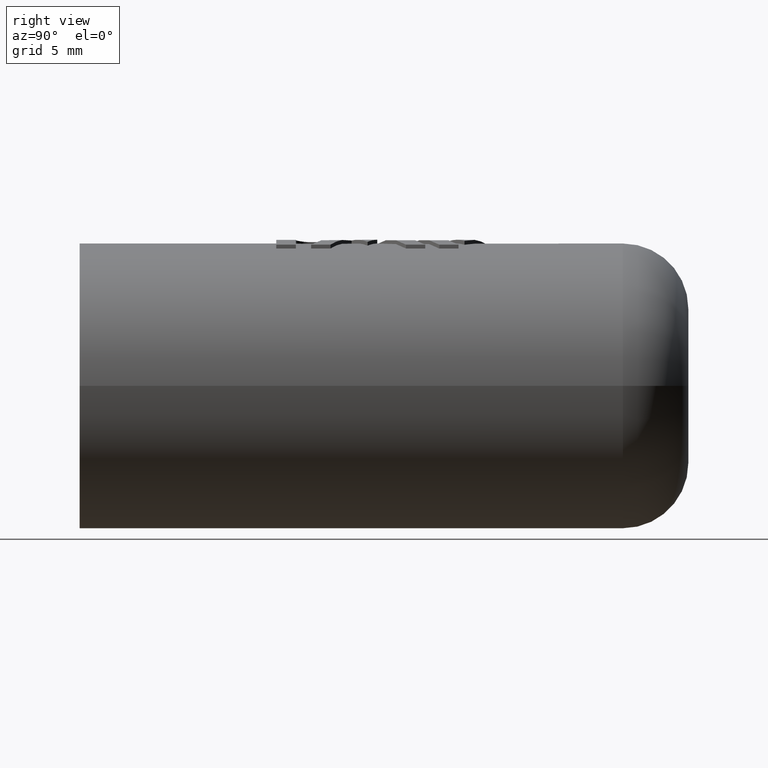
[diagram: clean part render]
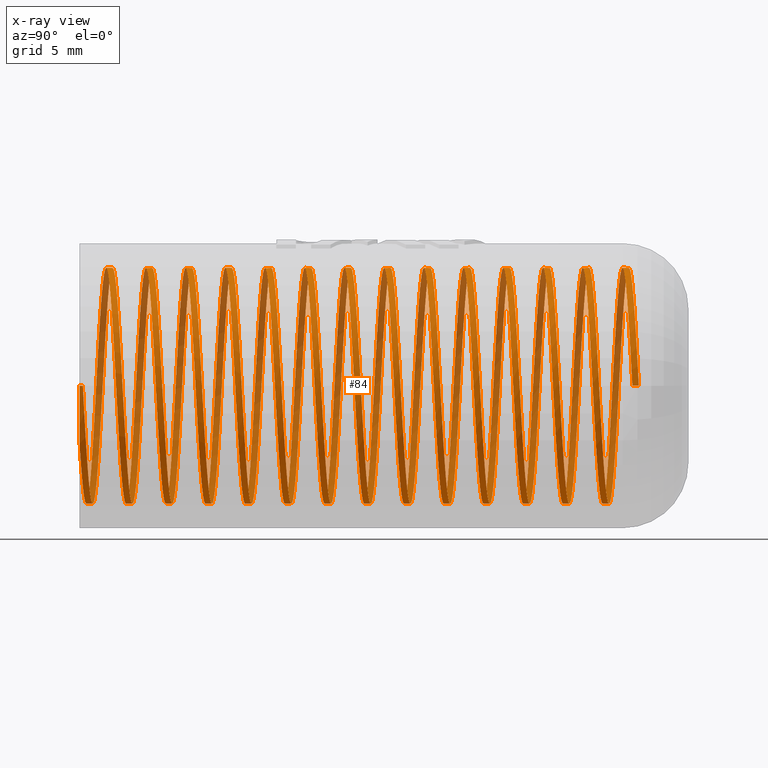
[diagram: x-ray — body ghosted, one internal face saturated and labeled with its STEP entity id]
A machine part, right view, then the same camera in x-ray: the body is ghosted and one INTERNAL B-rep face — a face not visible from any outside direction — is saturated and labeled: STEP entity #84.
In plain terms, the highlighted face is a freeform B-spline surface patch.
Its self-contained STEP definition (entity closure, byte-faithful):
#84=ADVANCED_FACE('',(#169),#170,.F.);
#169=FACE_OUTER_BOUND('',#341,.T.);
#170=B_SPLINE_SURFACE_WITH_KNOTS('',1,3,((#342,#343,#344,#345,#346,#347,#348,#349,#350,#351,#352,#353,#354,#355,#356,#357,#358,#359,#360,#361,#362,#363,#364,#365,#366,#367,#368,#369,#370,#371,#372,#373,#374,#375,#376,#377,#378,#379,#380,#381,#382,#383,#384,#385,#386,#387,#388,#389,#390,#391,#392,#393,#394,#395,#396,#397,#398,#399,#400,#401,#402,#403,#404,#405,#406,#407,#408,#409,#410,#411,#412,#413,#414,#415,#416,#417,#418,#419,#420,#421,#422,#423,#424,#425,#426,#427,#428,#429,#430,#431,#432,#433,#434,#435,#436,#437,#438,#439,#440,#441,#442,#443,#444,#445,#446,#447,#448,#449,#450,#451,#452,#453,#454,#455,#456,#457,#458,#459,#460,#461,#462,#463,#464,#465,#466,#467,#468,#469,#470,#471,#472,#473,#474,#475,#476,#477,#478,#479,#480,#481,#482,#483,#484,#485,#486,#487,#488,#489,#490,#491,#492,#493,#494,#495,#496,#497,#498,#499,#500,#501,#502,#503,#504,#505,#506,#507,#508,#509,#510,#511,#512,#513,#514,#515,#516,#517,#518,#519,#520,#521,#522,#523,#524,#525,#526,#527,#528,#529,#530,#531,#532,#533,#534,#535,#536,#537,#538,#539,#540,#541,#542,#543,#544,#545,#546,#547,#548,#549,#550,#551,#552,#553,#554,#555,#556,#557,#558,#559,#560,#561,#562,#563,#564,#565,#566,#567),(#568,#569,#570,#571,#572,#573,#574,#575,#576,#577,#578,#579,#580,#581,#582,#583,#584,#585,#586,#587,#588,#589,#590,#591,#592,#593,#594,#595,#596,#597,#598,#599,#600,#601,#602,#603,#604,#605,#606,#607,#608,#609,#610,#611,#612,#613,#614,#615,#616,#617,#618,#619,#620,#621,#622,#623,#624,#625,#626,#627,#628,#629,#630,#631,#632,#633,#634,#635,#636,#637,#638,#639,#640,#641,#642,#643,#644,#645,#646,#647,#648,#649,#650,#651,#652,#653,#654,#655,#656,#657,#658,#659,#660,#661,#662,#663,#664,#665,#666,#667,#668,#669,#670,#671,#672,#673,#674,#675,#676,#677,#678,#679,#680,#681,#682,#683,#684,#685,#686,#687,#688,#689,#690,#691,#692,#693,#694,#695,#696,#697,#698,#699,#700,#701,#702,#703,#704,#705,#706,#707,#708,#709,#710,#711,#712,#713,#714,#715,#716,#717,#718,#719,#720,#721,#722,#723,#724,#725,#726,#727,#728,#729,#730,#731,#732,#733,#734,#735,#736,#737,#738,#739,#740,#741,#742,#743,#744,#745,#746,#747,#748,#749,#750,#751,#752,#753,#754,#755,#756,#757,#758,#759,#760,#761,#762,#763,#764,#765,#766,#767,#768,#769,#770,#771,#772,#773,#774,#775,#776,#777,#778,#779,#780,#781,#782,#783,#784,#785,#786,#787,#788,#789,#790,#791,#792,#793)),.UNSPECIFIED.,.F.,.F.,.F.,(2,2),(4,1,1,1,1,1,1,1,1,1,1,1,1,1,1,1,1,1,1,1,1,1,1,1,1,1,1,1,1,1,1,1,1,1,1,1,1,1,1,1,1,1,1,1,1,1,1,1,1,1,1,1,1,1,1,1,1,1,1,1,1,1,1,1,1,1,1,1,1,1,1,1,1,1,1,1,1,1,1,1,1,1,1,1,1,1,1,1,1,1,1,1,1,1,1,1,1,1,1,1,1,1,1,1,1,1,1,1,1,1,1,1,1,1,1,1,1,1,1,1,1,1,1,1,1,1,1,1,1,1,1,1,1,1,1,1,1,1,1,1,1,1,1,1,1,1,1,1,1,1,1,1,1,1,1,1,1,1,1,1,1,1,1,1,1,1,1,1,1,1,1,1,1,1,1,1,1,1,1,1,1,1,1,1,1,1,1,1,1,1,1,1,1,1,1,1,1,1,1,1,1,1,1,1,1,1,1,1,1,1,1,1,1,1,1,1,1,1,1,1,1,1,1,4),(0.666666666666667,1.0),(0.0,1.0,2.0,3.0,4.0,5.0,6.0,7.0,8.0,9.0,10.0,11.0,12.0,13.0,14.0,15.0,16.0,17.0,18.0,19.0,20.0,21.0,22.0,23.0,24.0,25.0,26.0,27.0,28.0,29.0,30.0,31.0,32.0,33.0,34.0,35.0,36.0,37.0,38.0,39.0,40.0,41.0,42.0,43.0,44.0,45.0,46.0,47.0,48.0,49.0,50.0,51.0,52.0,53.0,54.0,55.0,56.0,57.0,58.0,59.0,60.0,61.0,62.0,63.0,64.0,65.0,66.0,67.0,68.0,69.0,70.0,71.0,72.0,73.0,74.0,75.0,76.0,77.0,78.0,79.0,80.0,81.0,82.0,83.0,84.0,85.0,86.0,87.0,88.0,89.0,90.0,91.0,92.0,93.0,94.0,95.0,96.0,97.0,98.0,99.0,100.0,101.0,102.0,103.0,104.0,105.0,106.0,107.0,108.0,109.0,110.0,111.0,112.0,113.0,114.0,115.0,116.0,117.0,118.0,119.0,120.0,121.0,122.0,123.0,124.0,125.0,126.0,127.0,128.0,129.0,130.0,131.0,132.0,133.0,134.0,135.0,136.0,137.0,138.0,139.0,140.0,141.0,142.0,143.0,144.0,145.0,146.0,147.0,148.0,149.0,150.0,151.0,152.0,153.0,154.0,155.0,156.0,157.0,158.0,159.0,160.0,161.0,162.0,163.0,164.0,165.0,166.0,167.0,168.0,169.0,170.0,171.0,172.0,173.0,174.0,175.0,176.0,177.0,178.0,179.0,180.0,181.0,182.0,183.0,184.0,185.0,186.0,187.0,188.0,189.0,190.0,191.0,192.0,193.0,194.0,195.0,196.0,197.0,198.0,199.0,200.0,201.0,202.0,203.0,204.0,205.0,206.0,207.0,208.0,209.0,210.0,211.0,212.0,213.0,214.0,215.0,216.0,217.0,218.0,219.0,220.0,221.0,222.0,223.0),.UNSPECIFIED.);
#341=EDGE_LOOP('',(#1871,#1872,#1873,#1874,#1875));
#342=CARTESIAN_POINT('',(6.3,-0.173205080756877,2.37169225231204E-16));
#343=CARTESIAN_POINT('',(6.3,-0.129126603612519,-0.823022893598832));
#344=CARTESIAN_POINT('',(5.96898186251176,-0.0399780629286492,-2.48718995157596));
#345=CARTESIAN_POINT('',(4.55567584672787,0.0929476636853997,-4.58722580907621));
#346=CARTESIAN_POINT('',(2.44264845018766,0.226086968488903,-5.98651422428082));
#347=CARTESIAN_POINT('',(-0.0455424675974471,0.359169045150963,-6.46530056963526));
#348=CARTESIAN_POINT('',(-2.52674266770472,0.492266456067964,-5.95134570011338));
#349=CARTESIAN_POINT('',(-4.61985437142486,0.625359758176598,-4.52324078570713));
#350=CARTESIAN_POINT('',(-6.00339608396789,0.758454161239735,-2.40042355992744));
#351=CARTESIAN_POINT('',(-6.46486632962302,0.891548269302202,0.0910836817715416));
#352=CARTESIAN_POINT('',(-5.93338751159571,1.02464245641009,2.56859989074542));
#353=CARTESIAN_POINT('',(-4.49059021094314,1.15773662233776,4.65160109311483));
#354=CARTESIAN_POINT('',(-2.35807599304559,1.29083079394067,6.020155362778));
#355=CARTESIAN_POINT('',(0.136618882957455,1.4239249640229,6.46406438135695));
#356=CARTESIAN_POINT('',(2.61033024645219,1.55701913451259,5.9151474226655));
#357=CARTESIAN_POINT('',(4.68311681900732,1.69011330489311,4.45771352727371));
#358=CARTESIAN_POINT('',(6.0366160009276,1.82320747530288,2.31561229229533));
#359=CARTESIAN_POINT('',(6.46294169147925,1.95630164570481,-0.182147532297949));
#360=CARTESIAN_POINT('',(5.89661384705699,2.08939581610885,-2.65193102657085));
#361=CARTESIAN_POINT('',(4.4246156656465,2.22248998651231,-4.71440019963269));
#362=CARTESIAN_POINT('',(2.27303369854357,2.35558415691593,-6.05277711767679));
#363=CARTESIAN_POINT('',(-0.227667144093833,2.48867832731951,-6.46149833262261));
#364=CARTESIAN_POINT('',(-2.69340022651144,2.6217724977231,-5.87778770038637));
#365=CARTESIAN_POINT('',(-4.74544966708667,2.75486666812668,-4.39129826909219));
#366=CARTESIAN_POINT('',(-6.068637915353,2.88796083853028,-2.23034232424643));
#367=CARTESIAN_POINT('',(-6.45973437527874,3.02105500893386,0.273175459782226));
#368=CARTESIAN_POINT('',(-5.85866991704752,3.15414917933745,2.73473578871295));
#369=CARTESIAN_POINT('',(-4.35776299063034,3.28724334974104,4.77626368079459));
#370=CARTESIAN_POINT('',(-2.18754028763258,3.42033752014463,6.08419760699547));
#371=CARTESIAN_POINT('',(0.318670221394663,3.55343169054821,6.45764990696935));
#372=CARTESIAN_POINT('',(2.77593566223795,3.6865258609518,5.83926144560257));
#373=CARTESIAN_POINT('',(4.80684071186594,3.81962003135538,4.32401149417219));
#374=CARTESIAN_POINT('',(6.09945542058292,3.95271420175897,2.14462971239947));
#375=CARTESIAN_POINT('',(6.45524503111901,4.08580837216256,-0.364149171629338));
#376=CARTESIAN_POINT('',(5.81956324903661,4.21890254256614,-2.81699780288298));
#377=CARTESIAN_POINT('',(4.29004545435693,4.35199671296973,-4.83717924316812));
#378=CARTESIAN_POINT('',(2.10161272763005,4.48509088337332,-6.11441059907236));
#379=CARTESIAN_POINT('',(-0.409610053969005,4.61818505377691,-6.45251986704982));
#380=CARTESIAN_POINT('',(-2.85792017327849,4.7512792241805,-5.79957630470993));
#381=CARTESIAN_POINT('',(-4.86727776940207,4.88437339458408,-4.25586655646879));
#382=CARTESIAN_POINT('',(-6.12906240043658,5.01746756498767,-2.05849146768685));
#383=CARTESIAN_POINT('',(-6.44947454997552,5.15056173539126,0.455050612792812));
#384=CARTESIAN_POINT('',(-5.77930160430957,5.28365590579484,2.89870074298983));
#385=CARTESIAN_POINT('',(-4.22147649635327,5.41675007619843,4.89713479717701));
#386=CARTESIAN_POINT('',(-2.01526807210629,5.54984424660202,6.14341009770095));
#387=CARTESIAN_POINT('',(0.500468593488392,5.68293841700561,6.44610923099483));
#388=CARTESIAN_POINT('',(2.93933748861802,5.81603258740919,5.75874015380011));
#389=CARTESIAN_POINT('',(4.92674884508459,5.94912675781278,4.18687698033304));
#390=CARTESIAN_POINT('',(6.1574529789795,6.08222092821637,1.97194468549233));
#391=CARTESIAN_POINT('',(6.44242407708392,6.21531509861996,-0.54586174256354));
#392=CARTESIAN_POINT('',(5.73789297337367,6.34840926902354,-2.97982839390024));
#393=CARTESIAN_POINT('',(4.15206972512336,6.48150343942713,-4.95611844377221));
#394=CARTESIAN_POINT('',(1.92852345741026,6.61459760983072,-6.17119034751023));
#395=CARTESIAN_POINT('',(-0.59122780775813,6.7476917802343,-6.43841927108809));
#396=CARTESIAN_POINT('',(-3.02017144980968,6.88078595063789,-5.71676109739943));
#397=CARTESIAN_POINT('',(-4.98524213601616,7.01388012104148,-4.11705645774673));
#398=CARTESIAN_POINT('',(-6.18462152168967,7.14697429144507,-1.88500654227989));
#399=CARTESIAN_POINT('',(-6.43409501171279,7.28006846184865,0.636564538155888));
#400=CARTESIAN_POINT('',(-5.69534557437218,7.41316263225224,3.06036465465544));
#401=CARTESIAN_POINT('',(-4.08183891544743,7.54625680265583,5.01411847679369));
#402=CARTESIAN_POINT('',(-1.84139609926865,7.67935097305941,6.19774583510676));
#403=CARTESIAN_POINT('',(0.681869684296048,7.81244514346301,6.42945151351365));
#404=CARTESIAN_POINT('',(3.10040601418167,7.94553931386659,5.67364746686037));
#405=CARTESIAN_POINT('',(5.04274603335494,8.07863348427017,4.04641884560509));
#406=CARTESIAN_POINT('',(6.21056263657583,8.21172765467376,1.79769429218466));
#407=CARTESIAN_POINT('',(6.42448900688594,8.34482182507735,-0.727140998284853));
#408=CARTESIAN_POINT('',(5.65166785145337,8.47791599548094,-3.14029354166669));
#409=CARTESIAN_POINT('',(4.01079800564813,8.61101016588452,-5.07112338529383));
#410=CARTESIAN_POINT('',(1.75390328936911,8.7441043362881,-6.22307129016897));
#411=CARTESIAN_POINT('',(-0.772376233907304,8.8771985066917,-6.41920773805306));
#412=CARTESIAN_POINT('',(-3.18002525802128,9.01029267709528,-5.62940781870808));
#413=CARTESIAN_POINT('',(-5.09924912461869,9.14338684749887,-3.9749781629665));
#414=CARTESIAN_POINT('',(-6.23527117524755,9.27648101790246,-1.71002526358883));
#415=CARTESIAN_POINT('',(-6.41360796905433,9.40957518830605,0.817573146738424));
#416=CARTESIAN_POINT('',(-5.60686847309477,9.54266935870963,3.21959919188724));
#417=CARTESIAN_POINT('',(-3.9389610948241,9.67576352911322,5.12712185582195));
#418=CARTESIAN_POINT('',(-1.66606239192848,9.80885769951681,6.24716168649304));
#419=CARTESIAN_POINT('',(0.862729494254772,9.94195186992039,6.40768997773206));
#420=CARTESIAN_POINT('',(3.25901337973493,10.075046040324,5.58405093294229));
#421=CARTESIAN_POINT('',(5.15474019594957,10.2081402107276,3.90274858827043));
#422=CARTESIAN_POINT('',(6.25874223393703,10.3412343811312,1.62201685568244));
#423=CARTESIAN_POINT('',(6.4014540577177,10.4743285515347,-0.907843035945463));
#424=CARTESIAN_POINT('',(5.56095633038261,10.6074227219383,-3.29826586596087));
#425=CARTESIAN_POINT('',(3.86634244005202,10.7405168923419,-5.18210277466953));
#426=CARTESIAN_POINT('',(1.57789084024668,10.8736110627455,-6.2700122429905));
#427=CARTESIAN_POINT('',(-0.952911533423685,11.0067052331491,-6.39490051841725));
#428=CARTESIAN_POINT('',(-3.33735470298454,11.1397994035527,-5.53758581129466));
#429=CARTESIAN_POINT('',(-5.20920823433979,11.2728935739563,-3.82974445652339));
#430=CARTESIAN_POINT('',(-6.28097115447234,11.4059877443598,-1.53368653501017));
#431=CARTESIAN_POINT('',(-6.38802968499599,11.5390819147634,0.997932750537349));
#432=CARTESIAN_POINT('',(-5.5139405352474,11.672176085167,3.37627795134534));
#433=CARTESIAN_POINT('',(-3.79295645355703,11.8052702555706,5.23605523007589));
#434=CARTESIAN_POINT('',(-1.48940613324659,11.9383644259742,6.29161842463706));
#435=CARTESIAN_POINT('',(1.04290445348064,12.0714585963778,6.38084189836226));
#436=CARTESIAN_POINT('',(3.4150336797985,12.2045527667814,5.49002167544236));
#437=CARTESIAN_POINT('',(5.26264242981742,12.337646937185,3.75598025645376));
#438=CARTESIAN_POINT('',(6.30195352520185,12.4707411075886,1.445051832005));
#439=CARTESIAN_POINT('',(6.37333751515061,12.6038352779921,-1.08782441090412));
#440=CARTESIAN_POINT('',(5.46583041865539,12.7369294483957,-3.45361996541116));
#441=CARTESIAN_POINT('',(3.71881769985205,12.8700236187993,-5.28896851439411));
#442=CARTESIAN_POINT('',(1.40062583200136,13.0031177892029,-6.31197594337269));
#443=CARTESIAN_POINT('',(-1.13269039402588,13.1362119596065,-6.36551690770409));
#444=CARTESIAN_POINT('',(-3.49203489365751,13.2693061300101,-5.44136796517783));
#445=CARTESIAN_POINT('',(-5.31503217759145,13.4024003004137,-3.68147062763681));
#446=CARTESIAN_POINT('',(-6.32168518186985,13.5354944708173,-1.35613033750901));
#447=CARTESIAN_POINT('',(-6.35738046405573,13.6685886412209,1.17750017674207));
#448=CARTESIAN_POINT('',(-5.41663552875692,13.8016828116244,3.53027655851398));
#449=CARTESIAN_POINT('',(-3.64394089284809,13.934776982028,5.3408321262154));
#450=CARTESIAN_POINT('',(-1.31156755624938,14.0678711524316,6.33108075895254));
#451=CARTESIAN_POINT('',(1.22225153573726,14.2009653228352,6.34892858790938));
#452=CARTESIAN_POINT('',(3.56834306255391,14.3340594932388,5.39163433653548));
#453=CARTESIAN_POINT('',(5.36636708015665,14.4671536636424,3.60623035758894));
#454=CARTESIAN_POINT('',(6.34016220844289,14.600247834046,1.26693969928236));
#455=CARTESIAN_POINT('',(6.34016169861956,14.7333420044496,-1.26694225059498));
#456=CARTESIAN_POINT('',(5.36636562899123,14.8664361748531,-3.60623251704138));
#457=CARTESIAN_POINT('',(3.56834089293322,14.9995303452567,-5.391635772454));
#458=CARTESIAN_POINT('',(1.2222489808968,15.1326245156603,-6.34892907974895));
#459=CARTESIAN_POINT('',(-1.31157010390757,15.2657186860639,-6.33108023117074));
#460=CARTESIAN_POINT('',(-3.64394304202514,15.3988128564675,-5.34083065987508));
#461=CARTESIAN_POINT('',(-5.41663694935727,15.5319070268711,-3.53027437883271));
#462=CARTESIAN_POINT('',(-6.35738093788714,15.6650011972747,-1.17749761850049));
#463=CARTESIAN_POINT('',(-6.32168463615575,15.7980953676783,1.35613288138641));
#464=CARTESIAN_POINT('',(-5.31503069614895,15.9311895380819,3.68147276643186));
#465=CARTESIAN_POINT('',(-3.49203270402373,16.0642837084854,5.44136937038957));
#466=CARTESIAN_POINT('',(-1.13268783251016,16.197377878889,6.36551736350381));
#467=CARTESIAN_POINT('',(1.40062837197172,16.3304720492926,6.31197537975338));
#468=CARTESIAN_POINT('',(3.71881982815895,16.4635662196962,5.28896701792296));
#469=CARTESIAN_POINT('',(5.46583180840878,16.5966603900998,3.45361776593356));
#470=CARTESIAN_POINT('',(6.37333795289604,16.7297545605034,1.08782184624136));
#471=CARTESIAN_POINT('',(6.30195294370531,16.862848730907,-1.44505436794229));
#472=CARTESIAN_POINT('',(5.26264091839188,16.9959429013105,-3.75598237416692));
#473=CARTESIAN_POINT('',(3.41503147058624,17.1290370717141,-5.49002304966844));
#474=CARTESIAN_POINT('',(1.04290188579808,17.2621312421177,-6.38084231803168));
#475=CARTESIAN_POINT('',(-1.48940866502497,17.3952254125214,-6.29161782529213));
#476=CARTESIAN_POINT('',(-3.79295856057136,17.5283195829249,-5.23605370377095));
#477=CARTESIAN_POINT('',(-5.51394189387797,17.6614137533285,-3.37627573250801));
#478=CARTESIAN_POINT('',(-6.38803008656858,17.7945079237321,-0.997930179962414));
#479=CARTESIAN_POINT('',(-6.28097053730873,17.9276020941357,1.53368906250409));
#480=CARTESIAN_POINT('',(-5.20920669323116,18.0606962645393,3.82974655273436));
#481=CARTESIAN_POINT('',(-3.33735247463216,18.1937904349429,5.53758715426237));
#482=CARTESIAN_POINT('',(-0.952908960083721,18.3268846053464,6.39490090187309));
#483=CARTESIAN_POINT('',(1.57789336333074,18.45997877575,6.27001160803884));
#484=CARTESIAN_POINT('',(3.86634452535576,18.5930729461537,5.18210121883359));
#485=CARTESIAN_POINT('',(5.56095765762084,18.7261671165573,3.29826362820397));
#486=CARTESIAN_POINT('',(6.40145442303776,18.8592612869608,0.907840459968245));
#487=CARTESIAN_POINT('',(6.25874158122883,18.9923554573644,-1.62201937423152));
#488=CARTESIAN_POINT('',(5.15473862546356,19.125449627768,-3.9027506625634));
#489=CARTESIAN_POINT('',(3.25901113268459,19.2585437981716,-5.58405224438517));
#490=CARTESIAN_POINT('',(0.862726915768075,19.3916379685752,-6.40769032489823));
#491=CARTESIAN_POINT('',(-1.66606490581759,19.5247321389787,-6.24716101606067));
#492=CARTESIAN_POINT('',(-3.93896315800339,19.6578263093824,-5.1271202707638));
#493=CARTESIAN_POINT('',(-5.60686976867723,19.7909204797859,-3.2195969356549));
#494=CARTESIAN_POINT('',(-6.41360829804937,19.9240146501895,-0.817570565870233));
#495=CARTESIAN_POINT('',(-6.23527048712426,20.0571088205931,1.71002777269325));
#496=CARTESIAN_POINT('',(-5.09924752506701,20.1902029909967,3.97498021492976));
#497=CARTESIAN_POINT('',(-3.1800229927189,20.3232971614003,5.62940909836585));
#498=CARTESIAN_POINT('',(-0.772373650785613,20.4563913318039,6.41920804886063));
#499=CARTESIAN_POINT('',(1.75390579356432,20.5894855022074,6.22307058438891));
#500=CARTESIAN_POINT('',(4.01080004629352,20.7225796726111,5.07112177132802));
#501=CARTESIAN_POINT('',(5.65166911512295,20.8556738430146,3.14029126740665));
#502=CARTESIAN_POINT('',(6.42448929949065,20.9887680134182,0.727138413037839));
#503=CARTESIAN_POINT('',(6.21056191317403,21.1218621838218,-1.79769679134643));
#504=CARTESIAN_POINT('',(5.04274440505505,21.2549563542254,-4.04642087483138));
#505=CARTESIAN_POINT('',(3.10040373107687,21.388050524629,-5.67364871447905));
#506=CARTESIAN_POINT('',(0.681867097051982,21.5211446950326,-6.42945178790097));
#507=CARTESIAN_POINT('',(-1.84139859327298,21.6542388654361,-6.1977450941191));
#508=CARTESIAN_POINT('',(-4.08184093315394,21.7873330358398,-5.01411683424052));
#509=CARTESIAN_POINT('',(-5.69534680587806,21.9204272062433,-3.06036236281909));
#510=CARTESIAN_POINT('',(-6.43409526786909,22.0535213766469,-0.636561949043178));
#511=CARTESIAN_POINT('',(-6.18462076315292,22.1866155470505,1.885009031003));
#512=CARTESIAN_POINT('',(-4.98524047929118,22.3197097174541,4.11705846383333));
#513=CARTESIAN_POINT('',(-3.02016914935552,22.4528038878577,5.71676231273141));
#514=CARTESIAN_POINT('',(-0.591225216905202,22.5858980582613,6.43841950900067));
#515=CARTESIAN_POINT('',(1.92852594072873,22.7189922286649,6.17118957146201));
#516=CARTESIAN_POINT('',(4.15207171949049,22.8520863990685,4.95611677295766));
#517=CARTESIAN_POINT('',(5.73789417247146,22.985180569472,2.9798260849424));
#518=CARTESIAN_POINT('',(6.44242429674096,23.1182747398757,0.545859150098943));
#519=CARTESIAN_POINT('',(6.15745218545834,23.2513689102793,-1.97194716328291));
#520=CARTESIAN_POINT('',(4.92674716026333,23.3844630806828,-4.18687896288181));
#521=CARTESIAN_POINT('',(2.9393351712712,23.5175572510864,-5.75874133660413));
#522=CARTESIAN_POINT('',(0.50046599954087,23.65065142149,-6.44610943238546));
#523=CARTESIAN_POINT('',(-2.01527054424594,23.7837455918936,-6.14340928674622));
#524=CARTESIAN_POINT('',(-4.22147846698516,23.9168397622972,-4.89713309843277));
#525=CARTESIAN_POINT('',(-5.77930277076123,24.0499339327007,-2.89869841736885));
#526=CARTESIAN_POINT('',(-6.44947473308971,24.1830281031044,-0.45504801749099));
#527=CARTESIAN_POINT('',(-6.1290615720885,24.316122273508,2.05849393405301));
#528=CARTESIAN_POINT('',(-4.867276056819,24.4492164439115,4.25586851508614));
#529=CARTESIAN_POINT('',(-2.85791783949878,24.5823106143152,5.79957745475131));
#530=CARTESIAN_POINT('',(-0.409607457441606,24.7154047847187,6.45252003187849));
#531=CARTESIAN_POINT('',(2.10161518810034,24.8484989551223,6.11440975337203));
#532=CARTESIAN_POINT('',(4.29004740086257,24.9815931255259,4.83717751683121));
#533=CARTESIAN_POINT('',(5.81956438261066,25.1146872959294,2.81699546106033));
#534=CARTESIAN_POINT('',(6.45524517765401,25.247781466333,0.364146574005216));
#535=CARTESIAN_POINT('',(6.0994545575723,25.3808756367367,-2.14463216685184));
#536=CARTESIAN_POINT('',(4.80683897186086,25.5139698071403,-4.32401342846953));
#537=CARTESIAN_POINT('',(2.77593331248854,25.6470639775438,-5.83926256265305));
#538=CARTESIAN_POINT('',(0.318667622802698,25.7801581479474,-6.45765003520339));
#539=CARTESIAN_POINT('',(-2.1875427359452,25.913252318351,-6.08419672671738));
#540=CARTESIAN_POINT('',(-4.35776491262342,26.0463464887546,-4.77626192720766));
#541=CARTESIAN_POINT('',(-5.858671017519,26.1794406591582,-2.73473343115339));
#542=CARTESIAN_POINT('',(-6.45973448520545,26.3125348295617,-0.273172860351371));
#543=CARTESIAN_POINT('',(-6.0686370178511,26.4456289999654,2.23034476629788));
#544=CARTESIAN_POINT('',(-4.7454479000049,26.5787231703689,4.39130017868559));
#545=CARTESIAN_POINT('',(-2.6933978612587,26.7118173407725,5.87778878422423));
#546=CARTESIAN_POINT('',(-0.227664543953055,26.8449115111761,6.46149842423653));
#547=CARTESIAN_POINT('',(2.27303613421261,26.9780056815797,6.05277620299565));
#548=CARTESIAN_POINT('',(4.4246175627455,27.1110998519833,4.71439841914368));
#549=CARTESIAN_POINT('',(5.89661491420747,27.2441940223868,2.65192865374259));
#550=CARTESIAN_POINT('',(6.46294176477585,27.3772881927909,0.182144931575128));
#551=CARTESIAN_POINT('',(6.03661506911256,27.5103823631928,-2.31561472145687));
#552=CARTESIAN_POINT('',(4.68311502519952,27.6434765336025,-4.45771541180022));
#553=CARTESIAN_POINT('',(2.61032786616724,27.7765707039831,-5.91514847301429));
#554=CARTESIAN_POINT('',(0.13661628176268,27.9096648744728,-6.46406443656842));
#555=CARTESIAN_POINT('',(-2.35807841540826,28.042759044555,-6.02015441299134));
#556=CARTESIAN_POINT('',(-4.49059208393042,28.1758532161579,-4.65159928919626));
#557=CARTESIAN_POINT('',(-5.9333885391057,28.3089473820857,-2.56859749312121));
#558=CARTESIAN_POINT('',(-6.46486639339319,28.4420415691931,-0.0910811082625715));
#559=CARTESIAN_POINT('',(-6.00339501512885,28.575135677257,2.40042604001964));
#560=CARTESIAN_POINT('',(-4.61985288536829,28.7082300803161,4.52324254147038));
#561=CARTESIAN_POINT('',(-2.52673935445692,28.8413233824352,5.95134674386777));
#562=CARTESIAN_POINT('',(-0.0455419463153376,28.9744207933281,6.4653011177451));
#563=CARTESIAN_POINT('',(2.44265454473268,29.1075028700419,5.9865110694179));
#564=CARTESIAN_POINT('',(4.5556730687649,29.2406421747681,4.58722885111016));
#565=CARTESIAN_POINT('',(5.96898634383966,29.3735679015022,2.48718147017731));
#566=CARTESIAN_POINT('',(6.3,29.4627164420989,0.823019947648541));
#567=CARTESIAN_POINT('',(6.3,29.5067949192433,-2.22208269257968E-12));
#568=CARTESIAN_POINT('',(6.3,0.173205080756877,-2.37169225231204E-16));
#569=CARTESIAN_POINT('',(6.3,0.217283557901234,-0.823019947650754));
#570=CARTESIAN_POINT('',(5.96898634383866,0.306432098497954,-2.4871814701794));
#571=CARTESIAN_POINT('',(4.55567306876335,0.439357825232003,-4.58722885111174));
#572=CARTESIAN_POINT('',(2.44265454473063,0.572497129958273,-5.98651106941873));
#573=CARTESIAN_POINT('',(-0.0455419463175261,0.705579206672065,-6.46530111774509));
#574=CARTESIAN_POINT('',(-2.52673935445892,0.83867661756493,-5.95134674386693));
#575=CARTESIAN_POINT('',(-4.61985288536978,0.971769919684035,-4.52324254146885));
#576=CARTESIAN_POINT('',(-6.00339501512963,1.10486432274313,-2.40042604001768));
#577=CARTESIAN_POINT('',(-6.46486639339316,1.23795843080705,0.0910811082646721));
#578=CARTESIAN_POINT('',(-5.93338853910486,1.37105261791445,2.56859749312311));
#579=CARTESIAN_POINT('',(-4.49059208392894,1.50414678384228,4.65159928919769));
#580=CARTESIAN_POINT('',(-2.35807841540635,1.63724095544514,6.02015441299207));
#581=CARTESIAN_POINT('',(0.136616281764691,1.77033512552738,6.46406443656836));
#582=CARTESIAN_POINT('',(2.61032786616907,1.90342929601708,5.91514847301348));
#583=CARTESIAN_POINT('',(4.68311502520088,2.03652346639759,4.45771541179878));
#584=CARTESIAN_POINT('',(6.03661506911326,2.16961763680735,2.31561472145505));
#585=CARTESIAN_POINT('',(6.46294176477579,2.30271180720929,-0.182144931577072));
#586=CARTESIAN_POINT('',(5.89661491420669,2.43580597761332,-2.65192865374433));
#587=CARTESIAN_POINT('',(4.42461756274411,2.56890014801679,-4.71439841914498));
#588=CARTESIAN_POINT('',(2.27303613421086,2.70199431842041,-6.05277620299631));
#589=CARTESIAN_POINT('',(-0.227664543954905,2.83508848882399,-6.46149842423647));
#590=CARTESIAN_POINT('',(-2.69339786126036,2.96818265922758,-5.87778878422348));
#591=CARTESIAN_POINT('',(-4.74544790000613,3.10127682963116,-4.39130017868426));
#592=CARTESIAN_POINT('',(-6.06863701785172,3.23437100003475,-2.23034476629619));
#593=CARTESIAN_POINT('',(-6.45973448520537,3.36746517043833,0.273172860353118));
#594=CARTESIAN_POINT('',(-5.85867101751826,3.50055934084192,2.73473343115496));
#595=CARTESIAN_POINT('',(-4.35776491262214,3.63365351124551,4.7762619272088));
#596=CARTESIAN_POINT('',(-2.18754273594363,3.7667476816491,6.08419672671794));
#597=CARTESIAN_POINT('',(0.318667622804351,3.89984185205269,6.45765003520331));
#598=CARTESIAN_POINT('',(2.77593331249001,4.03293602245627,5.83926256265234));
#599=CARTESIAN_POINT('',(4.80683897186192,4.16603019285986,4.32401342846834));
#600=CARTESIAN_POINT('',(6.09945455757282,4.29912436326345,2.14463216685034));
#601=CARTESIAN_POINT('',(6.45524517765392,4.43221853366704,-0.364146574006756));
#602=CARTESIAN_POINT('',(5.81956438261,4.56531270407062,-2.81699546106169));
#603=CARTESIAN_POINT('',(4.29004740086145,4.69840687447421,-4.8371775168322));
#604=CARTESIAN_POINT('',(2.10161518809897,4.8315010448778,-6.1144097533725));
#605=CARTESIAN_POINT('',(-0.40960745744304,4.96459521528138,-6.45252003187841));
#606=CARTESIAN_POINT('',(-2.85791783950004,5.09768938568497,-5.79957745475068));
#607=CARTESIAN_POINT('',(-4.8672760568199,5.23078355608856,-4.25586851508511));
#608=CARTESIAN_POINT('',(-6.12906157208893,5.36387772649215,-2.05849393405173));
#609=CARTESIAN_POINT('',(-6.44947473308962,5.49697189689573,0.455048017492293));
#610=CARTESIAN_POINT('',(-5.77930277076063,5.63006606729932,2.89869841737003));
#611=CARTESIAN_POINT('',(-4.2214784669842,5.76316023770291,4.89713309843358));
#612=CARTESIAN_POINT('',(-2.01527054424476,5.8962544081065,6.14340928674661));
#613=CARTESIAN_POINT('',(0.50046599954209,6.02934857851008,6.44610943238535));
#614=CARTESIAN_POINT('',(2.93933517127223,6.16244274891367,5.7587413366036));
#615=CARTESIAN_POINT('',(4.92674716026417,6.29553691931726,4.18687896288082));
#616=CARTESIAN_POINT('',(6.1574521854587,6.42863108972084,1.97194716328173));
#617=CARTESIAN_POINT('',(6.44242429674086,6.56172526012443,-0.545859150100161));
#618=CARTESIAN_POINT('',(5.7378941724709,6.69481943052802,-2.97982608494347));
#619=CARTESIAN_POINT('',(4.15207171948961,6.82791360093161,-4.9561167729584));
#620=CARTESIAN_POINT('',(1.92852594072765,6.96100777133519,-6.17118957146235));
#621=CARTESIAN_POINT('',(-0.5912252169063,7.09410194173878,-6.43841950900057));
#622=CARTESIAN_POINT('',(-3.02016914935647,7.22719611214237,-5.71676231273091));
#623=CARTESIAN_POINT('',(-4.98524047929186,7.36029028254595,-4.11705846383251));
#624=CARTESIAN_POINT('',(-6.18462076315321,7.49338445294954,-1.88500903100205));
#625=CARTESIAN_POINT('',(-6.43409526786899,7.62647862335313,0.636561949044157));
#626=CARTESIAN_POINT('',(-5.6953468058776,7.75957279375672,3.06036236281994));
#627=CARTESIAN_POINT('',(-4.0818409331532,7.8926669641603,5.0141168342411));
#628=CARTESIAN_POINT('',(-1.8413985932721,8.02576113456389,6.19774509411936));
#629=CARTESIAN_POINT('',(0.681867097052878,8.15885530496749,6.42945178790087));
#630=CARTESIAN_POINT('',(3.10040373107761,8.29194947537107,5.67364871447864));
#631=CARTESIAN_POINT('',(5.04274440505556,8.42504364577465,4.04642087483073));
#632=CARTESIAN_POINT('',(6.21056191317425,8.55813781617824,1.79769679134565));
#633=CARTESIAN_POINT('',(6.42448929949056,8.69123198658183,-0.727138413038619));
#634=CARTESIAN_POINT('',(5.65166911512257,8.82432615698541,-3.14029126740732));
#635=CARTESIAN_POINT('',(4.01080004629295,8.957420327389,-5.07112177132845));
#636=CARTESIAN_POINT('',(1.75390579356366,9.09051449779258,-6.2230705843891));
#637=CARTESIAN_POINT('',(-0.772373650786275,9.22360866819617,-6.41920804886056));
#638=CARTESIAN_POINT('',(-3.18002299271946,9.35670283859976,-5.62940909836554));
#639=CARTESIAN_POINT('',(-5.09924752506739,9.48979700900335,-3.97498021492927));
#640=CARTESIAN_POINT('',(-6.23527048712442,9.62289117940694,-1.71002777269267));
#641=CARTESIAN_POINT('',(-6.41360829804929,9.75598534981053,0.817570565870767));
#642=CARTESIAN_POINT('',(-5.60686976867697,9.88907952021411,3.21959693565536));
#643=CARTESIAN_POINT('',(-3.93896315800299,10.0221736906177,5.1271202707641));
#644=CARTESIAN_POINT('',(-1.66606490581713,10.1552678610213,6.24716101606078));
#645=CARTESIAN_POINT('',(0.862726915768538,10.2883620314249,6.40769032489816));
#646=CARTESIAN_POINT('',(3.25901113268494,10.4214562018285,5.58405224438495));
#647=CARTESIAN_POINT('',(5.1547386254638,10.554550372232,3.90275066256309));
#648=CARTESIAN_POINT('',(6.25874158122891,10.6876445426356,1.62201937423115));
#649=CARTESIAN_POINT('',(6.40145442303771,10.8207387130392,-0.90784045996859));
#650=CARTESIAN_POINT('',(5.56095765762068,10.9538328834428,-3.29826362820425));
#651=CARTESIAN_POINT('',(3.86634452535551,11.0869270538464,-5.18210121883377));
#652=CARTESIAN_POINT('',(1.57789336333051,11.22002122425,-6.2700116080389));
#653=CARTESIAN_POINT('',(-0.952908960083987,11.3531153946536,-6.39490090187305));
#654=CARTESIAN_POINT('',(-3.33735247463233,11.4862095650572,-5.53758715426226));
#655=CARTESIAN_POINT('',(-5.20920669323125,11.6193037354607,-3.82974655273425));
#656=CARTESIAN_POINT('',(-6.28097053730878,11.7523979058643,-1.53368906250393));
#657=CARTESIAN_POINT('',(-6.38803008656855,11.8854920762679,0.997930179962506));
#658=CARTESIAN_POINT('',(-5.51394189387791,12.0185862466715,3.3762757325081));
#659=CARTESIAN_POINT('',(-3.79295856057126,12.1516804170751,5.23605370377101));
#660=CARTESIAN_POINT('',(-1.48940866502486,12.2847745874787,6.29161782529215));
#661=CARTESIAN_POINT('',(1.0429018857982,12.4178687578823,6.38084231803166));
#662=CARTESIAN_POINT('',(3.41503147058633,12.5509629282859,5.49002304966837));
#663=CARTESIAN_POINT('',(5.26264091839195,12.6840570986894,3.75598237416682));
#664=CARTESIAN_POINT('',(6.30195294370533,12.817151269093,1.44505436794217));
#665=CARTESIAN_POINT('',(6.37333795289602,12.9502454394966,-1.08782184624147));
#666=CARTESIAN_POINT('',(5.46583180840871,13.0833396099002,-3.45361776593366));
#667=CARTESIAN_POINT('',(3.71881982815886,13.2164337803038,-5.28896701792303));
#668=CARTESIAN_POINT('',(1.40062837197161,13.3495279507074,-6.31197537975342));
#669=CARTESIAN_POINT('',(-1.13268783251027,13.482622121111,-6.36551736350379));
#670=CARTESIAN_POINT('',(-3.49203270402383,13.6157162915146,-5.44136937038951));
#671=CARTESIAN_POINT('',(-5.31503069614901,13.7488104619182,-3.68147276643177));
#672=CARTESIAN_POINT('',(-6.32168463615578,13.8819046323217,-1.35613288138631));
#673=CARTESIAN_POINT('',(-6.35738093788711,14.0149988027253,1.17749761850061));
#674=CARTESIAN_POINT('',(-5.41663694935724,14.1480929731289,3.53027437883274));
#675=CARTESIAN_POINT('',(-3.64394304202508,14.2811871435325,5.34083065987511));
#676=CARTESIAN_POINT('',(-1.3115701039075,14.4142813139361,6.33108023117075));
#677=CARTESIAN_POINT('',(1.22224898089687,14.5473754843397,6.34892907974893));
#678=CARTESIAN_POINT('',(3.56834089293329,14.6804696547433,5.39163577245395));
#679=CARTESIAN_POINT('',(5.36636562899127,14.8135638251469,3.60623251704132));
#680=CARTESIAN_POINT('',(6.34016169861957,14.9466579955505,1.26694225059491));
#681=CARTESIAN_POINT('',(6.34016220844287,15.079752165954,-1.26693969928243));
#682=CARTESIAN_POINT('',(5.36636708015662,15.2128463363577,-3.60623035758899));
#683=CARTESIAN_POINT('',(3.56834306255386,15.3459405067612,-5.39163433653552));
#684=CARTESIAN_POINT('',(1.22225153573719,15.4790346771648,-6.3489285879094));
#685=CARTESIAN_POINT('',(-1.31156755624944,15.6121288475684,-6.33108075895253));
#686=CARTESIAN_POINT('',(-3.64394089284815,15.745223017972,-5.34083212621536));
#687=CARTESIAN_POINT('',(-5.41663552875695,15.8783171883756,-3.53027655851394));
#688=CARTESIAN_POINT('',(-6.35738046405576,16.0114113587792,-1.17750017674195));
#689=CARTESIAN_POINT('',(-6.32168518186982,16.1445055291827,1.35613033750911));
#690=CARTESIAN_POINT('',(-5.31503217759138,16.2775996995863,3.68147062763691));
#691=CARTESIAN_POINT('',(-3.49203489365742,16.4106938699899,5.44136796517788));
#692=CARTESIAN_POINT('',(-1.13269039402576,16.5437880403935,6.3655169077041));
#693=CARTESIAN_POINT('',(1.40062583200147,16.6768822107971,6.31197594337266));
#694=CARTESIAN_POINT('',(3.71881769985215,16.8099763812007,5.28896851439403));
#695=CARTESIAN_POINT('',(5.46583041865545,16.9430705516043,3.45361996541106));
#696=CARTESIAN_POINT('',(6.37333751515063,17.0761647220078,1.08782441090401));
#697=CARTESIAN_POINT('',(6.30195352520183,17.2092588924114,-1.44505183200511));
#698=CARTESIAN_POINT('',(5.26264242981735,17.3423530628151,-3.75598025645386));
#699=CARTESIAN_POINT('',(3.41503367979841,17.4754472332187,-5.49002167544243));
#700=CARTESIAN_POINT('',(1.04290445348053,17.6085414036222,-6.38084189836228));
#701=CARTESIAN_POINT('',(-1.4894061332467,17.7416355740258,-6.29161842463704));
#702=CARTESIAN_POINT('',(-3.79295645355712,17.8747297444294,-5.23605523007583));
#703=CARTESIAN_POINT('',(-5.51394053524746,18.007823914833,-3.37627795134525));
#704=CARTESIAN_POINT('',(-6.38802968499601,18.1409180852365,-0.997932750537258));
#705=CARTESIAN_POINT('',(-6.2809711544723,18.2740122556402,1.53368653501034));
#706=CARTESIAN_POINT('',(-5.20920823433971,18.4071064260437,3.82974445652349));
#707=CARTESIAN_POINT('',(-3.33735470298437,18.5402005964473,5.53758581129477));
#708=CARTESIAN_POINT('',(-0.95291153342342,18.673294766851,6.39490051841729));
#709=CARTESIAN_POINT('',(1.5778908402469,18.8063889372545,6.27001224299043));
#710=CARTESIAN_POINT('',(3.86634244005228,18.9394831076581,5.18210277466934));
#711=CARTESIAN_POINT('',(5.56095633038278,19.0725772780617,3.29826586596059));
#712=CARTESIAN_POINT('',(6.40145405771775,19.2056714484653,0.907843035945116));
#713=CARTESIAN_POINT('',(6.25874223393694,19.3387656188688,-1.62201685568279));
#714=CARTESIAN_POINT('',(5.15474019594933,19.4718597892725,-3.90274858827075));
#715=CARTESIAN_POINT('',(3.25901337973459,19.6049539596761,-5.5840509329425));
#716=CARTESIAN_POINT('',(0.862729494254309,19.7380481300797,-6.40768997773213));
#717=CARTESIAN_POINT('',(-1.66606239192895,19.8711423004832,-6.24716168649292));
#718=CARTESIAN_POINT('',(-3.9389610948245,20.0042364708868,-5.12712185582165));
#719=CARTESIAN_POINT('',(-5.60686847309504,20.1373306412904,-3.21959919188679));
#720=CARTESIAN_POINT('',(-6.4136079690544,20.270424811694,-0.817573146737891));
#721=CARTESIAN_POINT('',(-6.2352711752474,20.4035189820976,1.71002526358941));
#722=CARTESIAN_POINT('',(-5.09924912461831,20.5366131525012,3.97497816296699));
#723=CARTESIAN_POINT('',(-3.18002525802072,20.6697073229047,5.6294078187084));
#724=CARTESIAN_POINT('',(-0.772376233906643,20.8028014933084,6.41920773805313));
#725=CARTESIAN_POINT('',(1.75390328936978,20.9358956637119,6.22307129016878));
#726=CARTESIAN_POINT('',(4.01079800564869,21.0689898341155,5.0711233852934));
#727=CARTESIAN_POINT('',(5.65166785145374,21.2020840045191,3.14029354166602));
#728=CARTESIAN_POINT('',(6.42448900688603,21.3351781749227,0.727140998284074));
#729=CARTESIAN_POINT('',(6.21056263657561,21.4682723453263,-1.79769429218544));
#730=CARTESIAN_POINT('',(5.04274603335443,21.6013665157299,-4.04641884560574));
#731=CARTESIAN_POINT('',(3.10040601418094,21.7344606861335,-5.67364746686079));
#732=CARTESIAN_POINT('',(0.681869684295149,21.8675548565371,-6.42945151351376));
#733=CARTESIAN_POINT('',(-1.84139609926953,22.0006490269407,-6.19774583510651));
#734=CARTESIAN_POINT('',(-4.08183891544817,22.1337431973442,-5.01411847679311));
#735=CARTESIAN_POINT('',(-5.69534557437264,22.2668373677478,-3.06036465465459));
#736=CARTESIAN_POINT('',(-6.43409501171289,22.3999315381514,-0.63656453815491));
#737=CARTESIAN_POINT('',(-6.18462152168938,22.533025708555,1.88500654228085));
#738=CARTESIAN_POINT('',(-4.98524213601548,22.6661198789586,4.11705645774755));
#739=CARTESIAN_POINT('',(-3.02017144980873,22.7992140493622,5.71676109739993));
#740=CARTESIAN_POINT('',(-0.591227807757032,22.9323082197658,6.43841927108819));
#741=CARTESIAN_POINT('',(1.92852345741134,23.0654023901693,6.17119034750989));
#742=CARTESIAN_POINT('',(4.15206972512424,23.1984965605729,4.95611844377147));
#743=CARTESIAN_POINT('',(5.73789297337423,23.3315907309766,2.97982839389917));
#744=CARTESIAN_POINT('',(6.44242407708402,23.4646849013801,0.545861742562323));
#745=CARTESIAN_POINT('',(6.15745297897914,23.5977790717837,-1.97194468549351));
#746=CARTESIAN_POINT('',(4.92674884508375,23.7308732421873,-4.18687698033402));
#747=CARTESIAN_POINT('',(2.93933748861698,23.8639674125909,-5.75874015380064));
#748=CARTESIAN_POINT('',(0.500468593487172,23.9970615829945,-6.44610923099494));
#749=CARTESIAN_POINT('',(-2.01526807210747,24.130155753398,-6.14341009770057));
#750=CARTESIAN_POINT('',(-4.22147649635422,24.2632499238017,-4.89713479717621));
#751=CARTESIAN_POINT('',(-5.77930160431017,24.3963440942053,-2.89870074298865));
#752=CARTESIAN_POINT('',(-6.44947454997562,24.5294382646088,-0.45505061279151));
#753=CARTESIAN_POINT('',(-6.12906240043615,24.6625324350124,2.05849146768813));
#754=CARTESIAN_POINT('',(-4.86727776940116,24.795626605416,4.25586655646983));
#755=CARTESIAN_POINT('',(-2.85792017327723,24.9287207758196,5.79957630471055));
#756=CARTESIAN_POINT('',(-0.40961005396757,25.0618149462232,6.4525198670499));
#757=CARTESIAN_POINT('',(2.10161272763142,25.1949091166267,6.11441059907189));
#758=CARTESIAN_POINT('',(4.29004545435805,25.3280032870304,4.83717924316712));
#759=CARTESIAN_POINT('',(5.81956324903727,25.461097457434,2.81699780288161));
#760=CARTESIAN_POINT('',(6.4552450311191,25.5941916278376,0.364149171627798));
#761=CARTESIAN_POINT('',(6.0994554205824,25.7272857982411,-2.14462971240096));
#762=CARTESIAN_POINT('',(4.80684071186488,25.8603799686447,-4.32401149417338));
#763=CARTESIAN_POINT('',(2.77593566223648,25.9934741390483,-5.83926144560328));
#764=CARTESIAN_POINT('',(0.31867022139301,26.1265683094519,-6.45764990696944));
#765=CARTESIAN_POINT('',(-2.18754028763415,26.2596624798555,-6.08419760699491));
#766=CARTESIAN_POINT('',(-4.35776299063162,26.3927566502591,-4.77626368079344));
#767=CARTESIAN_POINT('',(-5.85866991704825,26.5258508206626,-2.73473578871139));
#768=CARTESIAN_POINT('',(-6.45973437527882,26.6589449910662,-0.273175459780479));
#769=CARTESIAN_POINT('',(-6.06863791535239,26.7920391614699,2.23034232424812));
#770=CARTESIAN_POINT('',(-4.74544966708544,26.9251333318734,4.39129826909351));
#771=CARTESIAN_POINT('',(-2.69340022650978,27.058227502277,5.87778770038713));
#772=CARTESIAN_POINT('',(-0.227667144091984,27.1913216726806,6.46149833262268));
#773=CARTESIAN_POINT('',(2.27303369854532,27.3244158430842,6.05277711767613));
#774=CARTESIAN_POINT('',(4.42461566564788,27.4575100134878,4.71440019963138));
#775=CARTESIAN_POINT('',(5.89661384705777,27.5906041838913,2.6519310265691));
#776=CARTESIAN_POINT('',(6.46294169147931,27.7236983542953,0.182147532296006));
#777=CARTESIAN_POINT('',(6.0366160009269,27.8567925246973,-2.31561229229716));
#778=CARTESIAN_POINT('',(4.68311681900596,27.989886695107,-4.45771352727516));
#779=CARTESIAN_POINT('',(2.61033024645036,28.1229808654875,-5.91514742266632));
#780=CARTESIAN_POINT('',(0.136618882955444,28.2560750359772,-6.464064381357));
#781=CARTESIAN_POINT('',(-2.3580759930475,28.3891692060595,-6.02015536277727));
#782=CARTESIAN_POINT('',(-4.49059021094462,28.5222633776623,-4.65160109311341));
#783=CARTESIAN_POINT('',(-5.93338751159655,28.65535754359,-2.56859989074352));
#784=CARTESIAN_POINT('',(-6.46486632962305,28.7884517306979,-0.0910836817694422));
#785=CARTESIAN_POINT('',(-6.00339608396711,28.9215458387604,2.4004235599294));
#786=CARTESIAN_POINT('',(-4.61985437142336,29.0546402418235,4.52324078570866));
#787=CARTESIAN_POINT('',(-2.52674266770272,29.1877335439322,5.95134570011422));
#788=CARTESIAN_POINT('',(-0.0455424675952599,29.3208309548491,6.46530056963528));
#789=CARTESIAN_POINT('',(2.44264845018971,29.4539130315112,5.98651422427998));
#790=CARTESIAN_POINT('',(4.55567584672942,29.5870523363147,4.58722580907463));
#791=CARTESIAN_POINT('',(5.96898186251277,29.7199780629288,2.48718995157387));
#792=CARTESIAN_POINT('',(6.3,29.8091266036126,0.823022893596617));
#793=CARTESIAN_POINT('',(6.3,29.853205080757,-2.22203525873464E-12));
#1871=ORIENTED_EDGE('',*,*,#2544,.F.);
#1872=ORIENTED_EDGE('',*,*,#2545,.T.);
#1873=ORIENTED_EDGE('',*,*,#2546,.F.);
#1874=ORIENTED_EDGE('',*,*,#2547,.T.);
#1875=ORIENTED_EDGE('',*,*,#2543,.F.);
#2543=EDGE_CURVE('',#2757,#2754,#2759,.T.);
#2544=EDGE_CURVE('',#2760,#2757,#2761,.T.);
#2545=EDGE_CURVE('',#2760,#2762,#2763,.T.);
#2546=EDGE_CURVE('',#2764,#2762,#2765,.F.);
#2547=EDGE_CURVE('',#2764,#2754,#2766,.F.);
#2754=VERTEX_POINT('',#3107);
#2757=VERTEX_POINT('',#3111);
#2759=B_SPLINE_CURVE_WITH_KNOTS('',1,(#3114,#3115),.UNSPECIFIED.,.F.,.F.,(2,2),(0.833333333333334,1.0),.UNSPECIFIED.);
#2760=VERTEX_POINT('',#3116);
#2761=B_SPLINE_CURVE_WITH_KNOTS('',3,(#3117,#3118,#3119,#3120,#3121,#3122,#3123,#3124),.UNSPECIFIED.,.F.,.F.,(4,2,2,4),(0.0,0.00162511528932992,0.00243767293399488,0.00325023057865984),.UNSPECIFIED.);
#2762=VERTEX_POINT('',#3125);
#2763=B_SPLINE_CURVE_WITH_KNOTS('',3,(#3126,#3127,#3128,#3129,#3130,#3131,#3132,#3133,#3134,#3135,#3136,#3137,#3138,#3139,#3140,#3141,#3142,#3143,#3144,#3145,#3146,#3147,#3148,#3149,#3150,#3151,#3152,#3153,#3154,#3155,#3156,#3157,#3158,#3159,#3160,#3161,#3162,#3163,#3164,#3165,#3166,#3167,#3168,#3169,#3170,#3171,#3172,#3173,#3174,#3175,#3176,#3177,#3178,#3179,#3180,#3181,#3182,#3183,#3184,#3185,#3186,#3187,#3188,#3189,#3190,#3191,#3192,#3193,#3194,#3195,#3196,#3197,#3198,#3199,#3200,#3201,#3202,#3203,#3204,#3205,#3206,#3207,#3208,#3209,#3210,#3211,#3212,#3213,#3214,#3215,#3216,#3217,#3218,#3219,#3220,#3221,#3222,#3223,#3224,#3225,#3226,#3227,#3228,#3229,#3230,#3231,#3232,#3233,#3234,#3235,#3236,#3237,#3238,#3239,#3240,#3241,#3242,#3243,#3244,#3245,#3246,#3247,#3248,#3249,#3250,#3251,#3252,#3253,#3254,#3255,#3256,#3257,#3258,#3259,#3260,#3261,#3262,#3263,#3264,#3265,#3266,#3267,#3268,#3269,#3270,#3271,#3272,#3273,#3274,#3275,#3276,#3277,#3278,#3279,#3280,#3281,#3282,#3283,#3284,#3285,#3286,#3287,#3288,#3289,#3290,#3291,#3292,#3293,#3294,#3295,#3296,#3297,#3298,#3299,#3300,#3301,#3302,#3303,#3304,#3305,#3306,#3307,#3308,#3309,#3310,#3311,#3312,#3313,#3314,#3315,#3316,#3317,#3318,#3319,#3320,#3321,#3322,#3323,#3324,#3325,#3326,#3327,#3328,#3329,#3330,#3331,#3332,#3333,#3334,#3335,#3336,#3337,#3338,#3339,#3340,#3341,#3342,#3343,#3344,#3345,#3346,#3347,#3348,#3349,#3350),.UNSPECIFIED.,.F.,.F.,(4,1,1,1,1,1,1,1,1,1,1,1,1,1,1,1,1,1,1,1,1,1,1,1,1,1,1,1,1,1,1,1,1,1,1,1,1,1,1,1,1,1,1,1,1,1,1,1,1,1,1,1,1,1,1,1,1,1,1,1,1,1,1,1,1,1,1,1,1,1,1,1,1,1,1,1,1,1,1,1,1,1,1,1,1,1,1,1,1,1,1,1,1,1,1,1,1,1,1,1,1,1,1,1,1,1,1,1,1,1,1,1,1,1,1,1,1,1,1,1,1,1,1,1,1,1,1,1,1,1,1,1,1,1,1,1,1,1,1,1,1,1,1,1,1,1,1,1,1,1,1,1,1,1,1,1,1,1,1,1,1,1,1,1,1,1,1,1,1,1,1,1,1,1,1,1,1,1,1,1,1,1,1,1,1,1,1,1,1,1,1,1,1,1,1,1,1,1,1,1,1,1,1,1,1,1,1,1,1,1,1,1,1,1,1,1,1,1,1,1,1,1,4),(1.30108878673297,2.0,3.0,4.0,5.0,6.0,7.0,8.0,9.0,10.0,11.0,12.0,13.0,14.0,15.0,16.0,17.0,18.0,19.0,20.0,21.0,22.0,23.0,24.0,25.0,26.0,27.0,28.0,29.0,30.0,31.0,32.0,33.0,34.0,35.0,36.0,37.0,38.0,39.0,40.0,41.0,42.0,43.0,44.0,45.0,46.0,47.0,48.0,49.0,50.0,51.0,52.0,53.0,54.0,55.0,56.0,57.0,58.0,59.0,60.0,61.0,62.0,63.0,64.0,65.0,66.0,67.0,68.0,69.0,70.0,71.0,72.0,73.0,74.0,75.0,76.0,77.0,78.0,79.0,80.0,81.0,82.0,83.0,84.0,85.0,86.0,87.0,88.0,89.0,90.0,91.0,92.0,93.0,94.0,95.0,96.0,97.0,98.0,99.0,100.0,101.0,102.0,103.0,104.0,105.0,106.0,107.0,108.0,109.0,110.0,111.0,112.0,113.0,114.0,115.0,116.0,117.0,118.0,119.0,120.0,121.0,122.0,123.0,124.0,125.0,126.0,127.0,128.0,129.0,130.0,131.0,132.0,133.0,134.0,135.0,136.0,137.0,138.0,139.0,140.0,141.0,142.0,143.0,144.0,145.0,146.0,147.0,148.0,149.0,150.0,151.0,152.0,153.0,154.0,155.0,156.0,157.0,158.0,159.0,160.0,161.0,162.0,163.0,164.0,165.0,166.0,167.0,168.0,169.0,170.0,171.0,172.0,173.0,174.0,175.0,176.0,177.0,178.0,179.0,180.0,181.0,182.0,183.0,184.0,185.0,186.0,187.0,188.0,189.0,190.0,191.0,192.0,193.0,194.0,195.0,196.0,197.0,198.0,199.0,200.0,201.0,202.0,203.0,204.0,205.0,206.0,207.0,208.0,209.0,210.0,211.0,212.0,213.0,214.0,215.0,216.0,217.0,218.0,219.0,220.0,221.0,222.0,223.0),.UNSPECIFIED.);
#2764=VERTEX_POINT('',#3351);
#2765=B_SPLINE_CURVE_WITH_KNOTS('',1,(#3352,#3353),.UNSPECIFIED.,.F.,.F.,(2,2),(0.666666666666667,1.0),.UNSPECIFIED.);
#2766=B_SPLINE_CURVE_WITH_KNOTS('',3,(#3354,#3355,#3356,#3357,#3358,#3359,#3360,#3361,#3362,#3363,#3364,#3365,#3366,#3367,#3368,#3369,#3370,#3371,#3372,#3373,#3374,#3375,#3376,#3377,#3378,#3379,#3380,#3381,#3382,#3383,#3384,#3385,#3386,#3387,#3388,#3389,#3390,#3391,#3392,#3393,#3394,#3395,#3396,#3397,#3398,#3399,#3400,#3401,#3402,#3403,#3404,#3405,#3406,#3407,#3408,#3409,#3410,#3411,#3412,#3413,#3414,#3415,#3416,#3417,#3418,#3419,#3420,#3421,#3422,#3423,#3424,#3425,#3426,#3427,#3428,#3429,#3430,#3431,#3432,#3433,#3434,#3435,#3436,#3437,#3438,#3439,#3440,#3441,#3442,#3443,#3444,#3445,#3446,#3447,#3448,#3449,#3450,#3451,#3452,#3453,#3454,#3455,#3456,#3457,#3458,#3459,#3460,#3461,#3462,#3463,#3464,#3465,#3466,#3467,#3468,#3469,#3470,#3471,#3472,#3473,#3474,#3475,#3476,#3477,#3478,#3479,#3480,#3481,#3482,#3483,#3484,#3485,#3486,#3487,#3488,#3489,#3490,#3491,#3492,#3493,#3494,#3495,#3496,#3497,#3498,#3499,#3500,#3501,#3502,#3503,#3504,#3505,#3506,#3507,#3508,#3509,#3510,#3511,#3512,#3513,#3514,#3515,#3516,#3517,#3518,#3519,#3520,#3521,#3522,#3523,#3524,#3525,#3526,#3527,#3528,#3529,#3530,#3531,#3532,#3533,#3534,#3535,#3536,#3537,#3538,#3539,#3540,#3541,#3542,#3543,#3544,#3545,#3546,#3547,#3548,#3549,#3550,#3551,#3552,#3553,#3554,#3555,#3556,#3557,#3558,#3559,#3560,#3561,#3562,#3563,#3564,#3565,#3566,#3567,#3568,#3569,#3570,#3571,#3572,#3573,#3574,#3575,#3576,#3577,#3578,#3579),.UNSPECIFIED.,.F.,.F.,(4,1,1,1,1,1,1,1,1,1,1,1,1,1,1,1,1,1,1,1,1,1,1,1,1,1,1,1,1,1,1,1,1,1,1,1,1,1,1,1,1,1,1,1,1,1,1,1,1,1,1,1,1,1,1,1,1,1,1,1,1,1,1,1,1,1,1,1,1,1,1,1,1,1,1,1,1,1,1,1,1,1,1,1,1,1,1,1,1,1,1,1,1,1,1,1,1,1,1,1,1,1,1,1,1,1,1,1,1,1,1,1,1,1,1,1,1,1,1,1,1,1,1,1,1,1,1,1,1,1,1,1,1,1,1,1,1,1,1,1,1,1,1,1,1,1,1,1,1,1,1,1,1,1,1,1,1,1,1,1,1,1,1,1,1,1,1,1,1,1,1,1,1,1,1,1,1,1,1,1,1,1,1,1,1,1,1,1,1,1,1,1,1,1,1,1,1,1,1,1,1,1,1,1,1,1,1,1,1,1,1,1,1,1,1,1,1,1,1,1,1,1,1,4),(0.0,1.0,2.0,3.0,4.0,5.0,6.0,7.0,8.0,9.0,10.0,11.0,12.0,13.0,14.0,15.0,16.0,17.0,18.0,19.0,20.0,21.0,22.0,23.0,24.0,25.0,26.0,27.0,28.0,29.0,30.0,31.0,32.0,33.0,34.0,35.0,36.0,37.0,38.0,39.0,40.0,41.0,42.0,43.0,44.0,45.0,46.0,47.0,48.0,49.0,50.0,51.0,52.0,53.0,54.0,55.0,56.0,57.0,58.0,59.0,60.0,61.0,62.0,63.0,64.0,65.0,66.0,67.0,68.0,69.0,70.0,71.0,72.0,73.0,74.0,75.0,76.0,77.0,78.0,79.0,80.0,81.0,82.0,83.0,84.0,85.0,86.0,87.0,88.0,89.0,90.0,91.0,92.0,93.0,94.0,95.0,96.0,97.0,98.0,99.0,100.0,101.0,102.0,103.0,104.0,105.0,106.0,107.0,108.0,109.0,110.0,111.0,112.0,113.0,114.0,115.0,116.0,117.0,118.0,119.0,120.0,121.0,122.0,123.0,124.0,125.0,126.0,127.0,128.0,129.0,130.0,131.0,132.0,133.0,134.0,135.0,136.0,137.0,138.0,139.0,140.0,141.0,142.0,143.0,144.0,145.0,146.0,147.0,148.0,149.0,150.0,151.0,152.0,153.0,154.0,155.0,156.0,157.0,158.0,159.0,160.0,161.0,162.0,163.0,164.0,165.0,166.0,167.0,168.0,169.0,170.0,171.0,172.0,173.0,174.0,175.0,176.0,177.0,178.0,179.0,180.0,181.0,182.0,183.0,184.0,185.0,186.0,187.0,188.0,189.0,190.0,191.0,192.0,193.0,194.0,195.0,196.0,197.0,198.0,199.0,200.0,201.0,202.0,203.0,204.0,205.0,206.0,207.0,208.0,209.0,210.0,211.0,212.0,213.0,214.0,215.0,216.0,217.0,218.0,219.0,220.0,221.0,222.0,223.0),.UNSPECIFIED.);
#3107=CARTESIAN_POINT('',(6.3,0.173205080756877,-2.37169225231204E-16));
#3111=CARTESIAN_POINT('',(6.3,6.7762635780344E-17,-2.88889491658086E-31));
#3114=CARTESIAN_POINT('',(6.3,8.13151629364128E-17,-9.62964972193618E-32));
#3115=CARTESIAN_POINT('',(6.3,0.173205080756877,-2.37169225231204E-16));
#3116=CARTESIAN_POINT('',(5.48810309949003,3.12643545424883E-11,-3.09375463005024));
#3117=CARTESIAN_POINT('',(5.48810309949003,3.12643545424883E-11,-3.09375463005024));
#3118=CARTESIAN_POINT('',(5.75462971508436,3.12643545424883E-11,-2.62119933291975));
#3119=CARTESIAN_POINT('',(5.9579457876988,-2.79520872595185E-17,-2.11490127256348));
#3120=CARTESIAN_POINT('',(6.16096216598168,-2.79520872593919E-17,-1.33858459346488));
#3121=CARTESIAN_POINT('',(6.21235036523423,2.31239994600424E-16,-1.07593694679337));
#3122=CARTESIAN_POINT('',(6.28191683029855,2.31239994600424E-16,-0.542738003940898));
#3123=CARTESIAN_POINT('',(6.3,-4.06575814682064E-17,-0.271239882655952));
#3124=CARTESIAN_POINT('',(6.3,-4.06575814682064E-17,1.92592994438723E-31));
#3125=CARTESIAN_POINT('',(6.3,29.5067949192433,-2.22208269257968E-12));
#3126=CARTESIAN_POINT('',(5.48810309949085,6.24392251362968E-11,-3.09375463004879));
#3127=CARTESIAN_POINT('',(5.2036206511721,0.0310153700797318,-3.59814575649249));
#3128=CARTESIAN_POINT('',(4.34360622834193,0.106309914268652,-4.72766249281736));
#3129=CARTESIAN_POINT('',(2.44264845018766,0.226086968488903,-5.98651422428082));
#3130=CARTESIAN_POINT('',(-0.0455424675974471,0.359169045150963,-6.46530056963526));
#3131=CARTESIAN_POINT('',(-2.52674266770472,0.492266456067964,-5.95134570011338));
#3132=CARTESIAN_POINT('',(-4.61985437142486,0.625359758176598,-4.52324078570713));
#3133=CARTESIAN_POINT('',(-6.00339608396789,0.758454161239735,-2.40042355992744));
#3134=CARTESIAN_POINT('',(-6.46486632962302,0.891548269302202,0.0910836817715416));
#3135=CARTESIAN_POINT('',(-5.93338751159571,1.02464245641009,2.56859989074542));
#3136=CARTESIAN_POINT('',(-4.49059021094314,1.15773662233776,4.65160109311483));
#3137=CARTESIAN_POINT('',(-2.35807599304559,1.29083079394067,6.020155362778));
#3138=CARTESIAN_POINT('',(0.136618882957455,1.4239249640229,6.46406438135695));
#3139=CARTESIAN_POINT('',(2.61033024645219,1.55701913451259,5.9151474226655));
#3140=CARTESIAN_POINT('',(4.68311681900732,1.69011330489311,4.45771352727371));
#3141=CARTESIAN_POINT('',(6.0366160009276,1.82320747530288,2.31561229229533));
#3142=CARTESIAN_POINT('',(6.46294169147925,1.95630164570481,-0.182147532297949));
#3143=CARTESIAN_POINT('',(5.89661384705699,2.08939581610885,-2.65193102657085));
#3144=CARTESIAN_POINT('',(4.4246156656465,2.22248998651231,-4.71440019963269));
#3145=CARTESIAN_POINT('',(2.27303369854357,2.35558415691593,-6.05277711767679));
#3146=CARTESIAN_POINT('',(-0.227667144093833,2.48867832731951,-6.46149833262261));
#3147=CARTESIAN_POINT('',(-2.69340022651144,2.6217724977231,-5.87778770038637));
#3148=CARTESIAN_POINT('',(-4.74544966708667,2.75486666812668,-4.39129826909219));
#3149=CARTESIAN_POINT('',(-6.068637915353,2.88796083853028,-2.23034232424643));
#3150=CARTESIAN_POINT('',(-6.45973437527874,3.02105500893386,0.273175459782226));
#3151=CARTESIAN_POINT('',(-5.85866991704752,3.15414917933745,2.73473578871295));
#3152=CARTESIAN_POINT('',(-4.35776299063034,3.28724334974104,4.77626368079459));
#3153=CARTESIAN_POINT('',(-2.18754028763258,3.42033752014463,6.08419760699547));
#3154=CARTESIAN_POINT('',(0.318670221394663,3.55343169054821,6.45764990696935));
#3155=CARTESIAN_POINT('',(2.77593566223795,3.6865258609518,5.83926144560257));
#3156=CARTESIAN_POINT('',(4.80684071186594,3.81962003135538,4.32401149417219));
#3157=CARTESIAN_POINT('',(6.09945542058292,3.95271420175897,2.14462971239947));
#3158=CARTESIAN_POINT('',(6.45524503111901,4.08580837216256,-0.364149171629338));
#3159=CARTESIAN_POINT('',(5.81956324903661,4.21890254256614,-2.81699780288298));
#3160=CARTESIAN_POINT('',(4.29004545435693,4.35199671296973,-4.83717924316812));
#3161=CARTESIAN_POINT('',(2.10161272763005,4.48509088337332,-6.11441059907236));
#3162=CARTESIAN_POINT('',(-0.409610053969005,4.61818505377691,-6.45251986704982));
#3163=CARTESIAN_POINT('',(-2.85792017327849,4.7512792241805,-5.79957630470993));
#3164=CARTESIAN_POINT('',(-4.86727776940207,4.88437339458408,-4.25586655646879));
#3165=CARTESIAN_POINT('',(-6.12906240043658,5.01746756498767,-2.05849146768685));
#3166=CARTESIAN_POINT('',(-6.44947454997552,5.15056173539126,0.455050612792812));
#3167=CARTESIAN_POINT('',(-5.77930160430957,5.28365590579484,2.89870074298983));
#3168=CARTESIAN_POINT('',(-4.22147649635327,5.41675007619843,4.89713479717701));
#3169=CARTESIAN_POINT('',(-2.01526807210629,5.54984424660202,6.14341009770095));
#3170=CARTESIAN_POINT('',(0.500468593488392,5.68293841700561,6.44610923099483));
#3171=CARTESIAN_POINT('',(2.93933748861802,5.81603258740919,5.75874015380011));
#3172=CARTESIAN_POINT('',(4.92674884508459,5.94912675781278,4.18687698033304));
#3173=CARTESIAN_POINT('',(6.1574529789795,6.08222092821637,1.97194468549233));
#3174=CARTESIAN_POINT('',(6.44242407708392,6.21531509861996,-0.54586174256354));
#3175=CARTESIAN_POINT('',(5.73789297337367,6.34840926902354,-2.97982839390024));
#3176=CARTESIAN_POINT('',(4.15206972512336,6.48150343942713,-4.95611844377221));
#3177=CARTESIAN_POINT('',(1.92852345741026,6.61459760983072,-6.17119034751023));
#3178=CARTESIAN_POINT('',(-0.59122780775813,6.7476917802343,-6.43841927108809));
#3179=CARTESIAN_POINT('',(-3.02017144980968,6.88078595063789,-5.71676109739943));
#3180=CARTESIAN_POINT('',(-4.98524213601616,7.01388012104148,-4.11705645774673));
#3181=CARTESIAN_POINT('',(-6.18462152168967,7.14697429144507,-1.88500654227989));
#3182=CARTESIAN_POINT('',(-6.43409501171279,7.28006846184865,0.636564538155888));
#3183=CARTESIAN_POINT('',(-5.69534557437218,7.41316263225224,3.06036465465544));
#3184=CARTESIAN_POINT('',(-4.08183891544743,7.54625680265583,5.01411847679369));
#3185=CARTESIAN_POINT('',(-1.84139609926865,7.67935097305941,6.19774583510676));
#3186=CARTESIAN_POINT('',(0.681869684296048,7.81244514346301,6.42945151351365));
#3187=CARTESIAN_POINT('',(3.10040601418167,7.94553931386659,5.67364746686037));
#3188=CARTESIAN_POINT('',(5.04274603335494,8.07863348427017,4.04641884560509));
#3189=CARTESIAN_POINT('',(6.21056263657583,8.21172765467376,1.79769429218466));
#3190=CARTESIAN_POINT('',(6.42448900688594,8.34482182507735,-0.727140998284853));
#3191=CARTESIAN_POINT('',(5.65166785145337,8.47791599548094,-3.14029354166669));
#3192=CARTESIAN_POINT('',(4.01079800564813,8.61101016588452,-5.07112338529383));
#3193=CARTESIAN_POINT('',(1.75390328936911,8.7441043362881,-6.22307129016897));
#3194=CARTESIAN_POINT('',(-0.772376233907304,8.8771985066917,-6.41920773805306));
#3195=CARTESIAN_POINT('',(-3.18002525802128,9.01029267709528,-5.62940781870808));
#3196=CARTESIAN_POINT('',(-5.09924912461869,9.14338684749887,-3.9749781629665));
#3197=CARTESIAN_POINT('',(-6.23527117524755,9.27648101790246,-1.71002526358883));
#3198=CARTESIAN_POINT('',(-6.41360796905433,9.40957518830605,0.817573146738424));
#3199=CARTESIAN_POINT('',(-5.60686847309477,9.54266935870963,3.21959919188724));
#3200=CARTESIAN_POINT('',(-3.9389610948241,9.67576352911322,5.12712185582195));
#3201=CARTESIAN_POINT('',(-1.66606239192848,9.80885769951681,6.24716168649304));
#3202=CARTESIAN_POINT('',(0.862729494254772,9.94195186992039,6.40768997773206));
#3203=CARTESIAN_POINT('',(3.25901337973493,10.075046040324,5.58405093294229));
#3204=CARTESIAN_POINT('',(5.15474019594957,10.2081402107276,3.90274858827043));
#3205=CARTESIAN_POINT('',(6.25874223393703,10.3412343811312,1.62201685568244));
#3206=CARTESIAN_POINT('',(6.4014540577177,10.4743285515347,-0.907843035945463));
#3207=CARTESIAN_POINT('',(5.56095633038261,10.6074227219383,-3.29826586596087));
#3208=CARTESIAN_POINT('',(3.86634244005202,10.7405168923419,-5.18210277466953));
#3209=CARTESIAN_POINT('',(1.57789084024668,10.8736110627455,-6.2700122429905));
#3210=CARTESIAN_POINT('',(-0.952911533423685,11.0067052331491,-6.39490051841725));
#3211=CARTESIAN_POINT('',(-3.33735470298454,11.1397994035527,-5.53758581129466));
#3212=CARTESIAN_POINT('',(-5.20920823433979,11.2728935739563,-3.82974445652339));
#3213=CARTESIAN_POINT('',(-6.28097115447234,11.4059877443598,-1.53368653501017));
#3214=CARTESIAN_POINT('',(-6.38802968499599,11.5390819147634,0.997932750537349));
#3215=CARTESIAN_POINT('',(-5.5139405352474,11.672176085167,3.37627795134534));
#3216=CARTESIAN_POINT('',(-3.79295645355703,11.8052702555706,5.23605523007589));
#3217=CARTESIAN_POINT('',(-1.48940613324659,11.9383644259742,6.29161842463706));
#3218=CARTESIAN_POINT('',(1.04290445348064,12.0714585963778,6.38084189836226));
#3219=CARTESIAN_POINT('',(3.4150336797985,12.2045527667814,5.49002167544236));
#3220=CARTESIAN_POINT('',(5.26264242981742,12.337646937185,3.75598025645376));
#3221=CARTESIAN_POINT('',(6.30195352520185,12.4707411075886,1.445051832005));
#3222=CARTESIAN_POINT('',(6.37333751515061,12.6038352779921,-1.08782441090412));
#3223=CARTESIAN_POINT('',(5.46583041865539,12.7369294483957,-3.45361996541116));
#3224=CARTESIAN_POINT('',(3.71881769985205,12.8700236187993,-5.28896851439411));
#3225=CARTESIAN_POINT('',(1.40062583200136,13.0031177892029,-6.31197594337269));
#3226=CARTESIAN_POINT('',(-1.13269039402588,13.1362119596065,-6.36551690770409));
#3227=CARTESIAN_POINT('',(-3.49203489365751,13.2693061300101,-5.44136796517783));
#3228=CARTESIAN_POINT('',(-5.31503217759145,13.4024003004137,-3.68147062763681));
#3229=CARTESIAN_POINT('',(-6.32168518186985,13.5354944708173,-1.35613033750901));
#3230=CARTESIAN_POINT('',(-6.35738046405573,13.6685886412209,1.17750017674207));
#3231=CARTESIAN_POINT('',(-5.41663552875692,13.8016828116244,3.53027655851398));
#3232=CARTESIAN_POINT('',(-3.64394089284809,13.934776982028,5.3408321262154));
#3233=CARTESIAN_POINT('',(-1.31156755624938,14.0678711524316,6.33108075895254));
#3234=CARTESIAN_POINT('',(1.22225153573726,14.2009653228352,6.34892858790938));
#3235=CARTESIAN_POINT('',(3.56834306255391,14.3340594932388,5.39163433653548));
#3236=CARTESIAN_POINT('',(5.36636708015665,14.4671536636424,3.60623035758894));
#3237=CARTESIAN_POINT('',(6.34016220844289,14.600247834046,1.26693969928236));
#3238=CARTESIAN_POINT('',(6.34016169861956,14.7333420044496,-1.26694225059498));
#3239=CARTESIAN_POINT('',(5.36636562899123,14.8664361748531,-3.60623251704138));
#3240=CARTESIAN_POINT('',(3.56834089293322,14.9995303452567,-5.391635772454));
#3241=CARTESIAN_POINT('',(1.2222489808968,15.1326245156603,-6.34892907974895));
#3242=CARTESIAN_POINT('',(-1.31157010390757,15.2657186860639,-6.33108023117074));
#3243=CARTESIAN_POINT('',(-3.64394304202514,15.3988128564675,-5.34083065987508));
#3244=CARTESIAN_POINT('',(-5.41663694935727,15.5319070268711,-3.53027437883271));
#3245=CARTESIAN_POINT('',(-6.35738093788714,15.6650011972747,-1.17749761850049));
#3246=CARTESIAN_POINT('',(-6.32168463615575,15.7980953676783,1.35613288138641));
#3247=CARTESIAN_POINT('',(-5.31503069614895,15.9311895380819,3.68147276643186));
#3248=CARTESIAN_POINT('',(-3.49203270402373,16.0642837084854,5.44136937038957));
#3249=CARTESIAN_POINT('',(-1.13268783251016,16.197377878889,6.36551736350381));
#3250=CARTESIAN_POINT('',(1.40062837197172,16.3304720492926,6.31197537975338));
#3251=CARTESIAN_POINT('',(3.71881982815895,16.4635662196962,5.28896701792296));
#3252=CARTESIAN_POINT('',(5.46583180840878,16.5966603900998,3.45361776593356));
#3253=CARTESIAN_POINT('',(6.37333795289604,16.7297545605034,1.08782184624136));
#3254=CARTESIAN_POINT('',(6.30195294370531,16.862848730907,-1.44505436794229));
#3255=CARTESIAN_POINT('',(5.26264091839188,16.9959429013105,-3.75598237416692));
#3256=CARTESIAN_POINT('',(3.41503147058624,17.1290370717141,-5.49002304966844));
#3257=CARTESIAN_POINT('',(1.04290188579808,17.2621312421177,-6.38084231803168));
#3258=CARTESIAN_POINT('',(-1.48940866502497,17.3952254125214,-6.29161782529213));
#3259=CARTESIAN_POINT('',(-3.79295856057136,17.5283195829249,-5.23605370377095));
#3260=CARTESIAN_POINT('',(-5.51394189387797,17.6614137533285,-3.37627573250801));
#3261=CARTESIAN_POINT('',(-6.38803008656858,17.7945079237321,-0.997930179962414));
#3262=CARTESIAN_POINT('',(-6.28097053730873,17.9276020941357,1.53368906250409));
#3263=CARTESIAN_POINT('',(-5.20920669323116,18.0606962645393,3.82974655273436));
#3264=CARTESIAN_POINT('',(-3.33735247463216,18.1937904349429,5.53758715426237));
#3265=CARTESIAN_POINT('',(-0.952908960083721,18.3268846053464,6.39490090187309));
#3266=CARTESIAN_POINT('',(1.57789336333074,18.45997877575,6.27001160803884));
#3267=CARTESIAN_POINT('',(3.86634452535576,18.5930729461537,5.18210121883359));
#3268=CARTESIAN_POINT('',(5.56095765762084,18.7261671165573,3.29826362820397));
#3269=CARTESIAN_POINT('',(6.40145442303776,18.8592612869608,0.907840459968245));
#3270=CARTESIAN_POINT('',(6.25874158122883,18.9923554573644,-1.62201937423152));
#3271=CARTESIAN_POINT('',(5.15473862546356,19.125449627768,-3.9027506625634));
#3272=CARTESIAN_POINT('',(3.25901113268459,19.2585437981716,-5.58405224438517));
#3273=CARTESIAN_POINT('',(0.862726915768075,19.3916379685752,-6.40769032489823));
#3274=CARTESIAN_POINT('',(-1.66606490581759,19.5247321389787,-6.24716101606067));
#3275=CARTESIAN_POINT('',(-3.93896315800339,19.6578263093824,-5.1271202707638));
#3276=CARTESIAN_POINT('',(-5.60686976867723,19.7909204797859,-3.2195969356549));
#3277=CARTESIAN_POINT('',(-6.41360829804937,19.9240146501895,-0.817570565870233));
#3278=CARTESIAN_POINT('',(-6.23527048712426,20.0571088205931,1.71002777269325));
#3279=CARTESIAN_POINT('',(-5.09924752506701,20.1902029909967,3.97498021492976));
#3280=CARTESIAN_POINT('',(-3.1800229927189,20.3232971614003,5.62940909836585));
#3281=CARTESIAN_POINT('',(-0.772373650785613,20.4563913318039,6.41920804886063));
#3282=CARTESIAN_POINT('',(1.75390579356432,20.5894855022074,6.22307058438891));
#3283=CARTESIAN_POINT('',(4.01080004629352,20.7225796726111,5.07112177132802));
#3284=CARTESIAN_POINT('',(5.65166911512295,20.8556738430146,3.14029126740665));
#3285=CARTESIAN_POINT('',(6.42448929949065,20.9887680134182,0.727138413037839));
#3286=CARTESIAN_POINT('',(6.21056191317403,21.1218621838218,-1.79769679134643));
#3287=CARTESIAN_POINT('',(5.04274440505505,21.2549563542254,-4.04642087483138));
#3288=CARTESIAN_POINT('',(3.10040373107687,21.388050524629,-5.67364871447905));
#3289=CARTESIAN_POINT('',(0.681867097051982,21.5211446950326,-6.42945178790097));
#3290=CARTESIAN_POINT('',(-1.84139859327298,21.6542388654361,-6.1977450941191));
#3291=CARTESIAN_POINT('',(-4.08184093315394,21.7873330358398,-5.01411683424052));
#3292=CARTESIAN_POINT('',(-5.69534680587806,21.9204272062433,-3.06036236281909));
#3293=CARTESIAN_POINT('',(-6.43409526786909,22.0535213766469,-0.636561949043178));
#3294=CARTESIAN_POINT('',(-6.18462076315292,22.1866155470505,1.885009031003));
#3295=CARTESIAN_POINT('',(-4.98524047929118,22.3197097174541,4.11705846383333));
#3296=CARTESIAN_POINT('',(-3.02016914935552,22.4528038878577,5.71676231273141));
#3297=CARTESIAN_POINT('',(-0.591225216905202,22.5858980582613,6.43841950900067));
#3298=CARTESIAN_POINT('',(1.92852594072873,22.7189922286649,6.17118957146201));
#3299=CARTESIAN_POINT('',(4.15207171949049,22.8520863990685,4.95611677295766));
#3300=CARTESIAN_POINT('',(5.73789417247146,22.985180569472,2.9798260849424));
#3301=CARTESIAN_POINT('',(6.44242429674096,23.1182747398757,0.545859150098943));
#3302=CARTESIAN_POINT('',(6.15745218545834,23.2513689102793,-1.97194716328291));
#3303=CARTESIAN_POINT('',(4.92674716026333,23.3844630806828,-4.18687896288181));
#3304=CARTESIAN_POINT('',(2.9393351712712,23.5175572510864,-5.75874133660413));
#3305=CARTESIAN_POINT('',(0.50046599954087,23.65065142149,-6.44610943238546));
#3306=CARTESIAN_POINT('',(-2.01527054424594,23.7837455918936,-6.14340928674622));
#3307=CARTESIAN_POINT('',(-4.22147846698516,23.9168397622972,-4.89713309843277));
#3308=CARTESIAN_POINT('',(-5.77930277076123,24.0499339327007,-2.89869841736885));
#3309=CARTESIAN_POINT('',(-6.44947473308971,24.1830281031044,-0.45504801749099));
#3310=CARTESIAN_POINT('',(-6.1290615720885,24.316122273508,2.05849393405301));
#3311=CARTESIAN_POINT('',(-4.867276056819,24.4492164439115,4.25586851508614));
#3312=CARTESIAN_POINT('',(-2.85791783949878,24.5823106143152,5.79957745475131));
#3313=CARTESIAN_POINT('',(-0.409607457441606,24.7154047847187,6.45252003187849));
#3314=CARTESIAN_POINT('',(2.10161518810034,24.8484989551223,6.11440975337203));
#3315=CARTESIAN_POINT('',(4.29004740086257,24.9815931255259,4.83717751683121));
#3316=CARTESIAN_POINT('',(5.81956438261066,25.1146872959294,2.81699546106033));
#3317=CARTESIAN_POINT('',(6.45524517765401,25.247781466333,0.364146574005216));
#3318=CARTESIAN_POINT('',(6.0994545575723,25.3808756367367,-2.14463216685184));
#3319=CARTESIAN_POINT('',(4.80683897186086,25.5139698071403,-4.32401342846953));
#3320=CARTESIAN_POINT('',(2.77593331248854,25.6470639775438,-5.83926256265305));
#3321=CARTESIAN_POINT('',(0.318667622802698,25.7801581479474,-6.45765003520339));
#3322=CARTESIAN_POINT('',(-2.1875427359452,25.913252318351,-6.08419672671738));
#3323=CARTESIAN_POINT('',(-4.35776491262342,26.0463464887546,-4.77626192720766));
#3324=CARTESIAN_POINT('',(-5.858671017519,26.1794406591582,-2.73473343115339));
#3325=CARTESIAN_POINT('',(-6.45973448520545,26.3125348295617,-0.273172860351371));
#3326=CARTESIAN_POINT('',(-6.0686370178511,26.4456289999654,2.23034476629788));
#3327=CARTESIAN_POINT('',(-4.7454479000049,26.5787231703689,4.39130017868559));
#3328=CARTESIAN_POINT('',(-2.6933978612587,26.7118173407725,5.87778878422423));
#3329=CARTESIAN_POINT('',(-0.227664543953055,26.8449115111761,6.46149842423653));
#3330=CARTESIAN_POINT('',(2.27303613421261,26.9780056815797,6.05277620299565));
#3331=CARTESIAN_POINT('',(4.4246175627455,27.1110998519833,4.71439841914368));
#3332=CARTESIAN_POINT('',(5.89661491420747,27.2441940223868,2.65192865374259));
#3333=CARTESIAN_POINT('',(6.46294176477585,27.3772881927909,0.182144931575128));
#3334=CARTESIAN_POINT('',(6.03661506911256,27.5103823631928,-2.31561472145687));
#3335=CARTESIAN_POINT('',(4.68311502519952,27.6434765336025,-4.45771541180022));
#3336=CARTESIAN_POINT('',(2.61032786616724,27.7765707039831,-5.91514847301429));
#3337=CARTESIAN_POINT('',(0.13661628176268,27.9096648744728,-6.46406443656842));
#3338=CARTESIAN_POINT('',(-2.35807841540826,28.042759044555,-6.02015441299134));
#3339=CARTESIAN_POINT('',(-4.49059208393042,28.1758532161579,-4.65159928919626));
#3340=CARTESIAN_POINT('',(-5.9333885391057,28.3089473820857,-2.56859749312121));
#3341=CARTESIAN_POINT('',(-6.46486639339319,28.4420415691931,-0.0910811082625715));
#3342=CARTESIAN_POINT('',(-6.00339501512885,28.575135677257,2.40042604001964));
#3343=CARTESIAN_POINT('',(-4.61985288536829,28.7082300803161,4.52324254147038));
#3344=CARTESIAN_POINT('',(-2.52673935445692,28.8413233824352,5.95134674386777));
#3345=CARTESIAN_POINT('',(-0.0455419463153376,28.9744207933281,6.4653011177451));
#3346=CARTESIAN_POINT('',(2.44265454473268,29.1075028700419,5.9865110694179));
#3347=CARTESIAN_POINT('',(4.5556730687649,29.2406421747681,4.58722885111016));
#3348=CARTESIAN_POINT('',(5.96898634383966,29.3735679015022,2.48718147017731));
#3349=CARTESIAN_POINT('',(6.3,29.4627164420989,0.823019947648541));
#3350=CARTESIAN_POINT('',(6.3,29.5067949192433,-2.22208269257968E-12));
#3351=CARTESIAN_POINT('',(6.3,29.853205080757,-2.22203525873464E-12));
#3352=CARTESIAN_POINT('',(6.3,29.5067949192433,-2.22208269257968E-12));
#3353=CARTESIAN_POINT('',(6.3,29.853205080757,-2.22203525873464E-12));
#3354=CARTESIAN_POINT('',(6.3,0.173205080756877,-2.37169225231204E-16));
#3355=CARTESIAN_POINT('',(6.3,0.217283557901234,-0.823019947650754));
#3356=CARTESIAN_POINT('',(5.96898634383866,0.306432098497954,-2.4871814701794));
#3357=CARTESIAN_POINT('',(4.55567306876335,0.439357825232003,-4.58722885111174));
#3358=CARTESIAN_POINT('',(2.44265454473063,0.572497129958273,-5.98651106941873));
#3359=CARTESIAN_POINT('',(-0.0455419463175261,0.705579206672065,-6.46530111774509));
#3360=CARTESIAN_POINT('',(-2.52673935445892,0.83867661756493,-5.95134674386693));
#3361=CARTESIAN_POINT('',(-4.61985288536978,0.971769919684035,-4.52324254146885));
#3362=CARTESIAN_POINT('',(-6.00339501512963,1.10486432274313,-2.40042604001768));
#3363=CARTESIAN_POINT('',(-6.46486639339316,1.23795843080705,0.0910811082646721));
#3364=CARTESIAN_POINT('',(-5.93338853910486,1.37105261791445,2.56859749312311));
#3365=CARTESIAN_POINT('',(-4.49059208392894,1.50414678384228,4.65159928919769));
#3366=CARTESIAN_POINT('',(-2.35807841540635,1.63724095544514,6.02015441299207));
#3367=CARTESIAN_POINT('',(0.136616281764691,1.77033512552738,6.46406443656836));
#3368=CARTESIAN_POINT('',(2.61032786616907,1.90342929601708,5.91514847301348));
#3369=CARTESIAN_POINT('',(4.68311502520088,2.03652346639759,4.45771541179878));
#3370=CARTESIAN_POINT('',(6.03661506911326,2.16961763680735,2.31561472145505));
#3371=CARTESIAN_POINT('',(6.46294176477579,2.30271180720929,-0.182144931577072));
#3372=CARTESIAN_POINT('',(5.89661491420669,2.43580597761332,-2.65192865374433));
#3373=CARTESIAN_POINT('',(4.42461756274411,2.56890014801679,-4.71439841914498));
#3374=CARTESIAN_POINT('',(2.27303613421086,2.70199431842041,-6.05277620299631));
#3375=CARTESIAN_POINT('',(-0.227664543954905,2.83508848882399,-6.46149842423647));
#3376=CARTESIAN_POINT('',(-2.69339786126036,2.96818265922758,-5.87778878422348));
#3377=CARTESIAN_POINT('',(-4.74544790000613,3.10127682963116,-4.39130017868426));
#3378=CARTESIAN_POINT('',(-6.06863701785172,3.23437100003475,-2.23034476629619));
#3379=CARTESIAN_POINT('',(-6.45973448520537,3.36746517043833,0.273172860353118));
#3380=CARTESIAN_POINT('',(-5.85867101751826,3.50055934084192,2.73473343115496));
#3381=CARTESIAN_POINT('',(-4.35776491262214,3.63365351124551,4.7762619272088));
#3382=CARTESIAN_POINT('',(-2.18754273594363,3.7667476816491,6.08419672671794));
#3383=CARTESIAN_POINT('',(0.318667622804351,3.89984185205269,6.45765003520331));
#3384=CARTESIAN_POINT('',(2.77593331249001,4.03293602245627,5.83926256265234));
#3385=CARTESIAN_POINT('',(4.80683897186192,4.16603019285986,4.32401342846834));
#3386=CARTESIAN_POINT('',(6.09945455757282,4.29912436326345,2.14463216685034));
#3387=CARTESIAN_POINT('',(6.45524517765392,4.43221853366704,-0.364146574006756));
#3388=CARTESIAN_POINT('',(5.81956438261,4.56531270407062,-2.81699546106169));
#3389=CARTESIAN_POINT('',(4.29004740086145,4.69840687447421,-4.8371775168322));
#3390=CARTESIAN_POINT('',(2.10161518809897,4.8315010448778,-6.1144097533725));
#3391=CARTESIAN_POINT('',(-0.40960745744304,4.96459521528138,-6.45252003187841));
#3392=CARTESIAN_POINT('',(-2.85791783950004,5.09768938568497,-5.79957745475068));
#3393=CARTESIAN_POINT('',(-4.8672760568199,5.23078355608856,-4.25586851508511));
#3394=CARTESIAN_POINT('',(-6.12906157208893,5.36387772649215,-2.05849393405173));
#3395=CARTESIAN_POINT('',(-6.44947473308962,5.49697189689573,0.455048017492293));
#3396=CARTESIAN_POINT('',(-5.77930277076063,5.63006606729932,2.89869841737003));
#3397=CARTESIAN_POINT('',(-4.2214784669842,5.76316023770291,4.89713309843358));
#3398=CARTESIAN_POINT('',(-2.01527054424476,5.8962544081065,6.14340928674661));
#3399=CARTESIAN_POINT('',(0.50046599954209,6.02934857851008,6.44610943238535));
#3400=CARTESIAN_POINT('',(2.93933517127223,6.16244274891367,5.7587413366036));
#3401=CARTESIAN_POINT('',(4.92674716026417,6.29553691931726,4.18687896288082));
#3402=CARTESIAN_POINT('',(6.1574521854587,6.42863108972084,1.97194716328173));
#3403=CARTESIAN_POINT('',(6.44242429674086,6.56172526012443,-0.545859150100161));
#3404=CARTESIAN_POINT('',(5.7378941724709,6.69481943052802,-2.97982608494347));
#3405=CARTESIAN_POINT('',(4.15207171948961,6.82791360093161,-4.9561167729584));
#3406=CARTESIAN_POINT('',(1.92852594072765,6.96100777133519,-6.17118957146235));
#3407=CARTESIAN_POINT('',(-0.5912252169063,7.09410194173878,-6.43841950900057));
#3408=CARTESIAN_POINT('',(-3.02016914935647,7.22719611214237,-5.71676231273091));
#3409=CARTESIAN_POINT('',(-4.98524047929186,7.36029028254595,-4.11705846383251));
#3410=CARTESIAN_POINT('',(-6.18462076315321,7.49338445294954,-1.88500903100205));
#3411=CARTESIAN_POINT('',(-6.43409526786899,7.62647862335313,0.636561949044157));
#3412=CARTESIAN_POINT('',(-5.6953468058776,7.75957279375672,3.06036236281994));
#3413=CARTESIAN_POINT('',(-4.0818409331532,7.8926669641603,5.0141168342411));
#3414=CARTESIAN_POINT('',(-1.8413985932721,8.02576113456389,6.19774509411936));
#3415=CARTESIAN_POINT('',(0.681867097052878,8.15885530496749,6.42945178790087));
#3416=CARTESIAN_POINT('',(3.10040373107761,8.29194947537107,5.67364871447864));
#3417=CARTESIAN_POINT('',(5.04274440505556,8.42504364577465,4.04642087483073));
#3418=CARTESIAN_POINT('',(6.21056191317425,8.55813781617824,1.79769679134565));
#3419=CARTESIAN_POINT('',(6.42448929949056,8.69123198658183,-0.727138413038619));
#3420=CARTESIAN_POINT('',(5.65166911512257,8.82432615698541,-3.14029126740732));
#3421=CARTESIAN_POINT('',(4.01080004629295,8.957420327389,-5.07112177132845));
#3422=CARTESIAN_POINT('',(1.75390579356366,9.09051449779258,-6.2230705843891));
#3423=CARTESIAN_POINT('',(-0.772373650786275,9.22360866819617,-6.41920804886056));
#3424=CARTESIAN_POINT('',(-3.18002299271946,9.35670283859976,-5.62940909836554));
#3425=CARTESIAN_POINT('',(-5.09924752506739,9.48979700900335,-3.97498021492927));
#3426=CARTESIAN_POINT('',(-6.23527048712442,9.62289117940694,-1.71002777269267));
#3427=CARTESIAN_POINT('',(-6.41360829804929,9.75598534981053,0.817570565870767));
#3428=CARTESIAN_POINT('',(-5.60686976867697,9.88907952021411,3.21959693565536));
#3429=CARTESIAN_POINT('',(-3.93896315800299,10.0221736906177,5.1271202707641));
#3430=CARTESIAN_POINT('',(-1.66606490581713,10.1552678610213,6.24716101606078));
#3431=CARTESIAN_POINT('',(0.862726915768538,10.2883620314249,6.40769032489816));
#3432=CARTESIAN_POINT('',(3.25901113268494,10.4214562018285,5.58405224438495));
#3433=CARTESIAN_POINT('',(5.1547386254638,10.554550372232,3.90275066256309));
#3434=CARTESIAN_POINT('',(6.25874158122891,10.6876445426356,1.62201937423115));
#3435=CARTESIAN_POINT('',(6.40145442303771,10.8207387130392,-0.90784045996859));
#3436=CARTESIAN_POINT('',(5.56095765762068,10.9538328834428,-3.29826362820425));
#3437=CARTESIAN_POINT('',(3.86634452535551,11.0869270538464,-5.18210121883377));
#3438=CARTESIAN_POINT('',(1.57789336333051,11.22002122425,-6.2700116080389));
#3439=CARTESIAN_POINT('',(-0.952908960083987,11.3531153946536,-6.39490090187305));
#3440=CARTESIAN_POINT('',(-3.33735247463233,11.4862095650572,-5.53758715426226));
#3441=CARTESIAN_POINT('',(-5.20920669323125,11.6193037354607,-3.82974655273425));
#3442=CARTESIAN_POINT('',(-6.28097053730878,11.7523979058643,-1.53368906250393));
#3443=CARTESIAN_POINT('',(-6.38803008656855,11.8854920762679,0.997930179962506));
#3444=CARTESIAN_POINT('',(-5.51394189387791,12.0185862466715,3.3762757325081));
#3445=CARTESIAN_POINT('',(-3.79295856057126,12.1516804170751,5.23605370377101));
#3446=CARTESIAN_POINT('',(-1.48940866502486,12.2847745874787,6.29161782529215));
#3447=CARTESIAN_POINT('',(1.0429018857982,12.4178687578823,6.38084231803166));
#3448=CARTESIAN_POINT('',(3.41503147058633,12.5509629282859,5.49002304966837));
#3449=CARTESIAN_POINT('',(5.26264091839195,12.6840570986894,3.75598237416682));
#3450=CARTESIAN_POINT('',(6.30195294370533,12.817151269093,1.44505436794217));
#3451=CARTESIAN_POINT('',(6.37333795289602,12.9502454394966,-1.08782184624147));
#3452=CARTESIAN_POINT('',(5.46583180840871,13.0833396099002,-3.45361776593366));
#3453=CARTESIAN_POINT('',(3.71881982815886,13.2164337803038,-5.28896701792303));
#3454=CARTESIAN_POINT('',(1.40062837197161,13.3495279507074,-6.31197537975342));
#3455=CARTESIAN_POINT('',(-1.13268783251027,13.482622121111,-6.36551736350379));
#3456=CARTESIAN_POINT('',(-3.49203270402383,13.6157162915146,-5.44136937038951));
#3457=CARTESIAN_POINT('',(-5.31503069614901,13.7488104619182,-3.68147276643177));
#3458=CARTESIAN_POINT('',(-6.32168463615578,13.8819046323217,-1.35613288138631));
#3459=CARTESIAN_POINT('',(-6.35738093788711,14.0149988027253,1.17749761850061));
#3460=CARTESIAN_POINT('',(-5.41663694935724,14.1480929731289,3.53027437883274));
#3461=CARTESIAN_POINT('',(-3.64394304202508,14.2811871435325,5.34083065987511));
#3462=CARTESIAN_POINT('',(-1.3115701039075,14.4142813139361,6.33108023117075));
#3463=CARTESIAN_POINT('',(1.22224898089687,14.5473754843397,6.34892907974893));
#3464=CARTESIAN_POINT('',(3.56834089293329,14.6804696547433,5.39163577245395));
#3465=CARTESIAN_POINT('',(5.36636562899127,14.8135638251469,3.60623251704132));
#3466=CARTESIAN_POINT('',(6.34016169861957,14.9466579955505,1.26694225059491));
#3467=CARTESIAN_POINT('',(6.34016220844287,15.079752165954,-1.26693969928243));
#3468=CARTESIAN_POINT('',(5.36636708015662,15.2128463363577,-3.60623035758899));
#3469=CARTESIAN_POINT('',(3.56834306255386,15.3459405067612,-5.39163433653552));
#3470=CARTESIAN_POINT('',(1.22225153573719,15.4790346771648,-6.3489285879094));
#3471=CARTESIAN_POINT('',(-1.31156755624944,15.6121288475684,-6.33108075895253));
#3472=CARTESIAN_POINT('',(-3.64394089284815,15.745223017972,-5.34083212621536));
#3473=CARTESIAN_POINT('',(-5.41663552875695,15.8783171883756,-3.53027655851394));
#3474=CARTESIAN_POINT('',(-6.35738046405576,16.0114113587792,-1.17750017674195));
#3475=CARTESIAN_POINT('',(-6.32168518186982,16.1445055291827,1.35613033750911));
#3476=CARTESIAN_POINT('',(-5.31503217759138,16.2775996995863,3.68147062763691));
#3477=CARTESIAN_POINT('',(-3.49203489365742,16.4106938699899,5.44136796517788));
#3478=CARTESIAN_POINT('',(-1.13269039402576,16.5437880403935,6.3655169077041));
#3479=CARTESIAN_POINT('',(1.40062583200147,16.6768822107971,6.31197594337266));
#3480=CARTESIAN_POINT('',(3.71881769985215,16.8099763812007,5.28896851439403));
#3481=CARTESIAN_POINT('',(5.46583041865545,16.9430705516043,3.45361996541106));
#3482=CARTESIAN_POINT('',(6.37333751515063,17.0761647220078,1.08782441090401));
#3483=CARTESIAN_POINT('',(6.30195352520183,17.2092588924114,-1.44505183200511));
#3484=CARTESIAN_POINT('',(5.26264242981735,17.3423530628151,-3.75598025645386));
#3485=CARTESIAN_POINT('',(3.41503367979841,17.4754472332187,-5.49002167544243));
#3486=CARTESIAN_POINT('',(1.04290445348053,17.6085414036222,-6.38084189836228));
#3487=CARTESIAN_POINT('',(-1.4894061332467,17.7416355740258,-6.29161842463704));
#3488=CARTESIAN_POINT('',(-3.79295645355712,17.8747297444294,-5.23605523007583));
#3489=CARTESIAN_POINT('',(-5.51394053524746,18.007823914833,-3.37627795134525));
#3490=CARTESIAN_POINT('',(-6.38802968499601,18.1409180852365,-0.997932750537258));
#3491=CARTESIAN_POINT('',(-6.2809711544723,18.2740122556402,1.53368653501034));
#3492=CARTESIAN_POINT('',(-5.20920823433971,18.4071064260437,3.82974445652349));
#3493=CARTESIAN_POINT('',(-3.33735470298437,18.5402005964473,5.53758581129477));
#3494=CARTESIAN_POINT('',(-0.95291153342342,18.673294766851,6.39490051841729));
#3495=CARTESIAN_POINT('',(1.5778908402469,18.8063889372545,6.27001224299043));
#3496=CARTESIAN_POINT('',(3.86634244005228,18.9394831076581,5.18210277466934));
#3497=CARTESIAN_POINT('',(5.56095633038278,19.0725772780617,3.29826586596059));
#3498=CARTESIAN_POINT('',(6.40145405771775,19.2056714484653,0.907843035945116));
#3499=CARTESIAN_POINT('',(6.25874223393694,19.3387656188688,-1.62201685568279));
#3500=CARTESIAN_POINT('',(5.15474019594933,19.4718597892725,-3.90274858827075));
#3501=CARTESIAN_POINT('',(3.25901337973459,19.6049539596761,-5.5840509329425));
#3502=CARTESIAN_POINT('',(0.862729494254309,19.7380481300797,-6.40768997773213));
#3503=CARTESIAN_POINT('',(-1.66606239192895,19.8711423004832,-6.24716168649292));
#3504=CARTESIAN_POINT('',(-3.9389610948245,20.0042364708868,-5.12712185582165));
#3505=CARTESIAN_POINT('',(-5.60686847309504,20.1373306412904,-3.21959919188679));
#3506=CARTESIAN_POINT('',(-6.4136079690544,20.270424811694,-0.817573146737891));
#3507=CARTESIAN_POINT('',(-6.2352711752474,20.4035189820976,1.71002526358941));
#3508=CARTESIAN_POINT('',(-5.09924912461831,20.5366131525012,3.97497816296699));
#3509=CARTESIAN_POINT('',(-3.18002525802072,20.6697073229047,5.6294078187084));
#3510=CARTESIAN_POINT('',(-0.772376233906643,20.8028014933084,6.41920773805313));
#3511=CARTESIAN_POINT('',(1.75390328936978,20.9358956637119,6.22307129016878));
#3512=CARTESIAN_POINT('',(4.01079800564869,21.0689898341155,5.0711233852934));
#3513=CARTESIAN_POINT('',(5.65166785145374,21.2020840045191,3.14029354166602));
#3514=CARTESIAN_POINT('',(6.42448900688603,21.3351781749227,0.727140998284074));
#3515=CARTESIAN_POINT('',(6.21056263657561,21.4682723453263,-1.79769429218544));
#3516=CARTESIAN_POINT('',(5.04274603335443,21.6013665157299,-4.04641884560574));
#3517=CARTESIAN_POINT('',(3.10040601418094,21.7344606861335,-5.67364746686079));
#3518=CARTESIAN_POINT('',(0.681869684295149,21.8675548565371,-6.42945151351376));
#3519=CARTESIAN_POINT('',(-1.84139609926953,22.0006490269407,-6.19774583510651));
#3520=CARTESIAN_POINT('',(-4.08183891544817,22.1337431973442,-5.01411847679311));
#3521=CARTESIAN_POINT('',(-5.69534557437264,22.2668373677478,-3.06036465465459));
#3522=CARTESIAN_POINT('',(-6.43409501171289,22.3999315381514,-0.63656453815491));
#3523=CARTESIAN_POINT('',(-6.18462152168938,22.533025708555,1.88500654228085));
#3524=CARTESIAN_POINT('',(-4.98524213601548,22.6661198789586,4.11705645774755));
#3525=CARTESIAN_POINT('',(-3.02017144980873,22.7992140493622,5.71676109739993));
#3526=CARTESIAN_POINT('',(-0.591227807757032,22.9323082197658,6.43841927108819));
#3527=CARTESIAN_POINT('',(1.92852345741134,23.0654023901693,6.17119034750989));
#3528=CARTESIAN_POINT('',(4.15206972512424,23.1984965605729,4.95611844377147));
#3529=CARTESIAN_POINT('',(5.73789297337423,23.3315907309766,2.97982839389917));
#3530=CARTESIAN_POINT('',(6.44242407708402,23.4646849013801,0.545861742562323));
#3531=CARTESIAN_POINT('',(6.15745297897914,23.5977790717837,-1.97194468549351));
#3532=CARTESIAN_POINT('',(4.92674884508375,23.7308732421873,-4.18687698033402));
#3533=CARTESIAN_POINT('',(2.93933748861698,23.8639674125909,-5.75874015380064));
#3534=CARTESIAN_POINT('',(0.500468593487172,23.9970615829945,-6.44610923099494));
#3535=CARTESIAN_POINT('',(-2.01526807210747,24.130155753398,-6.14341009770057));
#3536=CARTESIAN_POINT('',(-4.22147649635422,24.2632499238017,-4.89713479717621));
#3537=CARTESIAN_POINT('',(-5.77930160431017,24.3963440942053,-2.89870074298865));
#3538=CARTESIAN_POINT('',(-6.44947454997562,24.5294382646088,-0.45505061279151));
#3539=CARTESIAN_POINT('',(-6.12906240043615,24.6625324350124,2.05849146768813));
#3540=CARTESIAN_POINT('',(-4.86727776940116,24.795626605416,4.25586655646983));
#3541=CARTESIAN_POINT('',(-2.85792017327723,24.9287207758196,5.79957630471055));
#3542=CARTESIAN_POINT('',(-0.40961005396757,25.0618149462232,6.4525198670499));
#3543=CARTESIAN_POINT('',(2.10161272763142,25.1949091166267,6.11441059907189));
#3544=CARTESIAN_POINT('',(4.29004545435805,25.3280032870304,4.83717924316712));
#3545=CARTESIAN_POINT('',(5.81956324903727,25.461097457434,2.81699780288161));
#3546=CARTESIAN_POINT('',(6.4552450311191,25.5941916278376,0.364149171627798));
#3547=CARTESIAN_POINT('',(6.0994554205824,25.7272857982411,-2.14462971240096));
#3548=CARTESIAN_POINT('',(4.80684071186488,25.8603799686447,-4.32401149417338));
#3549=CARTESIAN_POINT('',(2.77593566223648,25.9934741390483,-5.83926144560328));
#3550=CARTESIAN_POINT('',(0.31867022139301,26.1265683094519,-6.45764990696944));
#3551=CARTESIAN_POINT('',(-2.18754028763415,26.2596624798555,-6.08419760699491));
#3552=CARTESIAN_POINT('',(-4.35776299063162,26.3927566502591,-4.77626368079344));
#3553=CARTESIAN_POINT('',(-5.85866991704825,26.5258508206626,-2.73473578871139));
#3554=CARTESIAN_POINT('',(-6.45973437527882,26.6589449910662,-0.273175459780479));
#3555=CARTESIAN_POINT('',(-6.06863791535239,26.7920391614699,2.23034232424812));
#3556=CARTESIAN_POINT('',(-4.74544966708544,26.9251333318734,4.39129826909351));
#3557=CARTESIAN_POINT('',(-2.69340022650978,27.058227502277,5.87778770038713));
#3558=CARTESIAN_POINT('',(-0.227667144091984,27.1913216726806,6.46149833262268));
#3559=CARTESIAN_POINT('',(2.27303369854532,27.3244158430842,6.05277711767613));
#3560=CARTESIAN_POINT('',(4.42461566564788,27.4575100134878,4.71440019963138));
#3561=CARTESIAN_POINT('',(5.89661384705777,27.5906041838913,2.6519310265691));
#3562=CARTESIAN_POINT('',(6.46294169147931,27.7236983542953,0.182147532296006));
#3563=CARTESIAN_POINT('',(6.0366160009269,27.8567925246973,-2.31561229229716));
#3564=CARTESIAN_POINT('',(4.68311681900596,27.989886695107,-4.45771352727516));
#3565=CARTESIAN_POINT('',(2.61033024645036,28.1229808654875,-5.91514742266632));
#3566=CARTESIAN_POINT('',(0.136618882955444,28.2560750359772,-6.464064381357));
#3567=CARTESIAN_POINT('',(-2.3580759930475,28.3891692060595,-6.02015536277727));
#3568=CARTESIAN_POINT('',(-4.49059021094462,28.5222633776623,-4.65160109311341));
#3569=CARTESIAN_POINT('',(-5.93338751159655,28.65535754359,-2.56859989074352));
#3570=CARTESIAN_POINT('',(-6.46486632962305,28.7884517306979,-0.0910836817694422));
#3571=CARTESIAN_POINT('',(-6.00339608396711,28.9215458387604,2.4004235599294));
#3572=CARTESIAN_POINT('',(-4.61985437142336,29.0546402418235,4.52324078570866));
#3573=CARTESIAN_POINT('',(-2.52674266770272,29.1877335439322,5.95134570011422));
#3574=CARTESIAN_POINT('',(-0.0455424675952599,29.3208309548491,6.46530056963528));
#3575=CARTESIAN_POINT('',(2.44264845018971,29.4539130315112,5.98651422427998));
#3576=CARTESIAN_POINT('',(4.55567584672942,29.5870523363147,4.58722580907463));
#3577=CARTESIAN_POINT('',(5.96898186251277,29.7199780629288,2.48718995157387));
#3578=CARTESIAN_POINT('',(6.3,29.8091266036126,0.823022893596617));
#3579=CARTESIAN_POINT('',(6.3,29.853205080757,-2.22203525873464E-12));